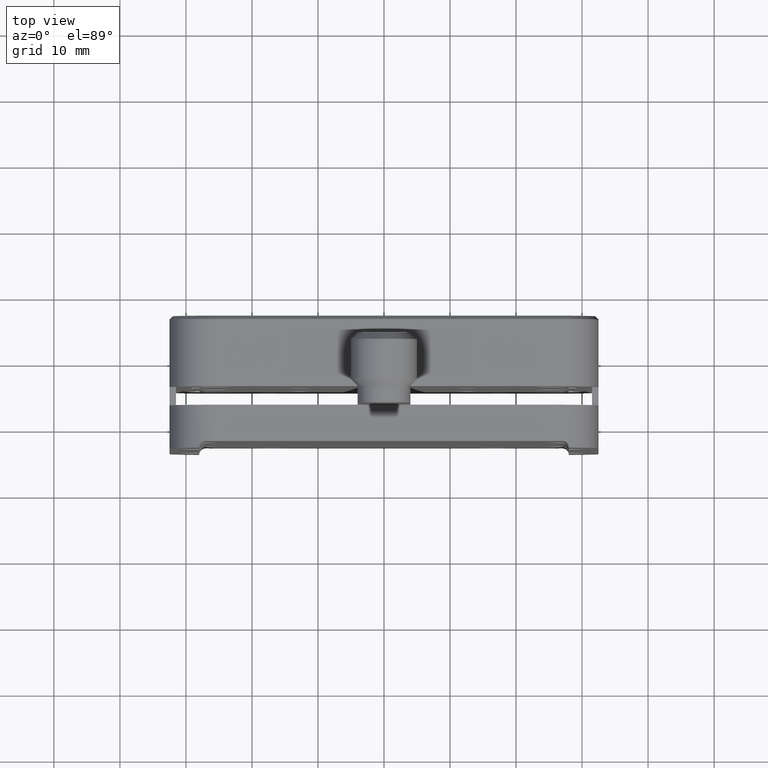
[diagram: clean part render]
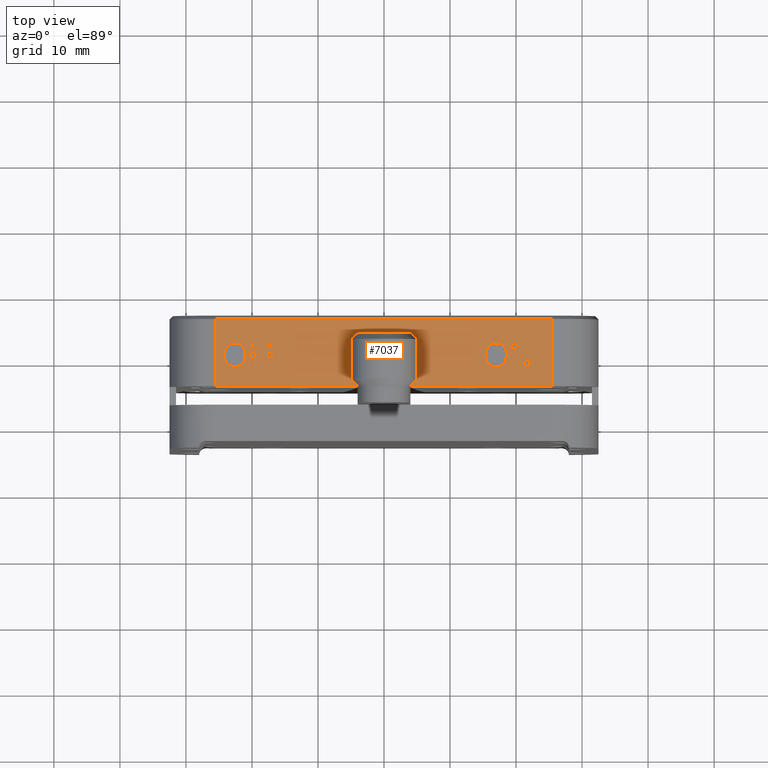
[diagram: same view with one face highlighted and labeled with its STEP entity id]
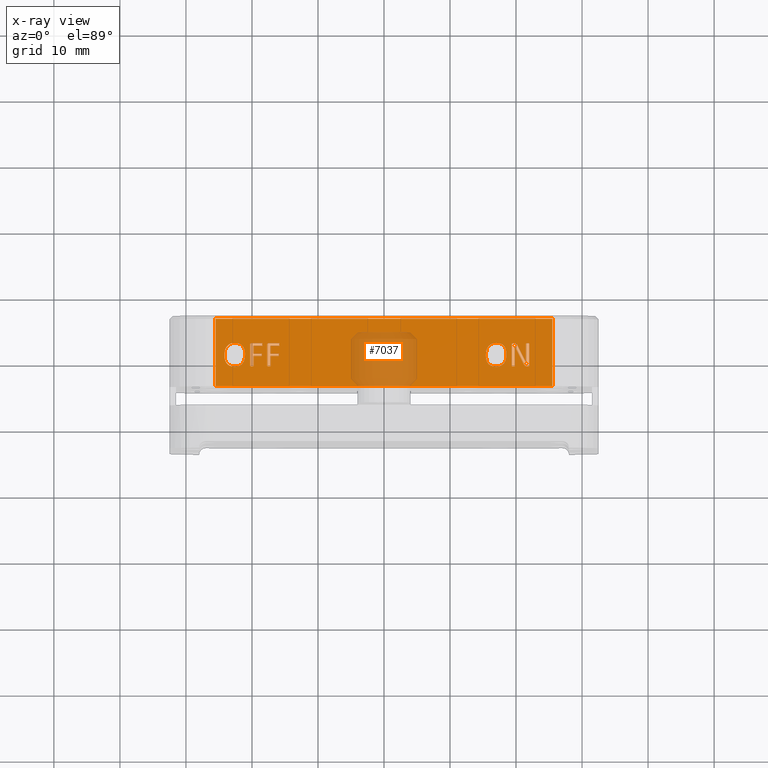
[diagram: x-ray of the same camera — body ghosted, the highlighted face saturated]
A machine part, top view. The second image highlights one B-rep face of the part: STEP entity #7037.
The next image is the same camera in x-ray: the body ghosted, the highlighted face saturated — about 16% of this face is hidden behind the body in this view.
In plain terms, the highlighted planar face has unit normal (-0, 0, -1).
Its self-contained STEP definition (entity closure, byte-faithful):
#19 = VERTEX_POINT ( 'NONE', #4724 ) ;
#31 = ORIENTED_EDGE ( 'NONE', *, *, #5882, .T. ) ;
#48 = CARTESIAN_POINT ( 'NONE',  ( -18.56445312500006400, 10.75588235294118000, 32.50000000000000000 ) ) ;
#66 = CARTESIAN_POINT ( 'NONE',  ( 19.84514796692238600, 10.98910845588235800, 32.49999999999999300 ) ) ;
#73 = ORIENTED_EDGE ( 'NONE', *, *, #7956, .T. ) ;
#75 = CARTESIAN_POINT ( 'NONE',  ( 15.41867737868709300, 10.53069852941176700, 32.49999999999999300 ) ) ;
#116 = EDGE_LOOP ( 'NONE', ( #4991, #4209, #5382, #7932, #73, #695, #6265, #264, #6096, #5299, #250, #4604, #4380, #4567, #2496, #1388, #989, #224, #1075, #1238, #8132, #5950 ) ) ;
#117 = VECTOR ( 'NONE', #594, 1000.000000000000000 ) ;
#132 = VERTEX_POINT ( 'NONE', #7264 ) ;
#153 = EDGE_CURVE ( 'NONE', #6809, #19, #4405, .T. ) ;
#172 = CARTESIAN_POINT ( 'NONE',  ( -17.68159885855960000, 8.866993695119861100, 32.50000000000000000 ) ) ;
#177 = ORIENTED_EDGE ( 'NONE', *, *, #5743, .T. ) ;
#183 = CARTESIAN_POINT ( 'NONE',  ( -24.08073456768339300, 9.767605573202145000, 32.50000000000000000 ) ) ;
#188 = CARTESIAN_POINT ( 'NONE',  ( -18.47708742564594800, 12.29904263614418600, 32.50000000000000000 ) ) ;
#192 = CARTESIAN_POINT ( 'NONE',  ( -17.42647058823535000, 8.800000000000002500, 32.50000000000000000 ) ) ;
#204 = VERTEX_POINT ( 'NONE', #5550 ) ;
#211 = FACE_BOUND ( 'NONE', #116, .T. ) ;
#223 = CARTESIAN_POINT ( 'NONE',  ( -22.63304227941182100, 8.748529411764709000, 32.50000000000000000 ) ) ;
#224 = ORIENTED_EDGE ( 'NONE', *, *, #4070, .T. ) ;
#234 = CARTESIAN_POINT ( 'NONE',  ( -19.77179600838153200, 8.832227494626970100, 32.50000000000000000 ) ) ;
#239 = CARTESIAN_POINT ( 'NONE',  ( -18.55817240592586300, 10.75551325960624800, 32.50000000000000000 ) ) ;
#241 = CARTESIAN_POINT ( 'NONE',  ( 19.33044208456944400, 12.10055147058824000, 32.49999999999999300 ) ) ;
#244 = VERTEX_POINT ( 'NONE', #4932 ) ;
#250 = ORIENTED_EDGE ( 'NONE', *, *, #3307, .T. ) ;
#254 = CARTESIAN_POINT ( 'NONE',  ( 20.07487539787399200, 11.29658135786703900, 32.49999999999999300 ) ) ;
#255 = CARTESIAN_POINT ( 'NONE',  ( -17.50930606617652400, 12.30000000000000200, 32.50000000000000000 ) ) ;
#260 = LINE ( 'NONE', #2800, #2750 ) ;
#264 = ORIENTED_EDGE ( 'NONE', *, *, #4462, .T. ) ;
#271 = CARTESIAN_POINT ( 'NONE',  ( 18.55558058952371100, 10.79296849647337600, 32.49999999999999300 ) ) ;
#272 = CARTESIAN_POINT ( 'NONE',  ( 15.46712777178560900, 9.940680674252211800, 32.49999999999999300 ) ) ;
#298 = B_SPLINE_CURVE_WITH_KNOTS ( 'NONE', 3,
 ( #5355, #4095, #7324, #5408, #6616, #4174, #2823, #3032, #5578, #4896, #6828 ),
 .UNSPECIFIED., .F., .F.,
 ( 4, 1, 1, 1, 1, 1, 1, 1, 4 ),
 ( 0.0000000000000000000, 0.2362224828584658900, 0.4264135999576101300, 0.5799213763692415700, 0.6984786828821241100, 0.7905833487290971900, 0.8683498488893369700, 0.9358932705104522400, 0.9999999999999998900 ),
 .UNSPECIFIED. ) ;
#302 = CARTESIAN_POINT ( 'NONE',  ( -17.68382352941182100, 12.11181066176470900, 32.50000000000000000 ) ) ;
#306 = LINE ( 'NONE', #3141, #117 ) ;
#307 = CARTESIAN_POINT ( 'NONE',  ( 19.84514796692238600, 11.78609834558823600, 32.49999999999999300 ) ) ;
#334 = VERTEX_POINT ( 'NONE', #5097 ) ;
#339 = LINE ( 'NONE', #3873, #8219 ) ;
#345 = CARTESIAN_POINT ( 'NONE',  ( 15.41959499221782100, 10.46068569274915400, 32.49999999999999300 ) ) ;
#348 = B_SPLINE_CURVE_WITH_KNOTS ( 'NONE', 3,
 ( #2737, #2058, #3979, #2079, #3925, #3309, #7161, #6487, #4586, #1384, #3385 ),
 .UNSPECIFIED., .F., .F.,
 ( 4, 1, 1, 1, 1, 1, 1, 1, 4 ),
 ( 0.0000000000000000000, 0.1454708864759476100, 0.2659173968555692500, 0.3722482837096763900, 0.4747811427953339000, 0.5823215193952715500, 0.7029111204227740400, 0.8409926561235264700, 1.000000000000000000 ),
 .UNSPECIFIED. ) ;
#351 = CARTESIAN_POINT ( 'NONE',  ( -20.25735294117653100, 8.886052389705884700, 32.50000000000000000 ) ) ;
#365 = CARTESIAN_POINT ( 'NONE',  ( 20.98795587133415500, 10.48807444852941600, 32.49999999999999300 ) ) ;
#370 = CARTESIAN_POINT ( 'NONE',  ( -21.07977449303295700, 11.17052868314102200, 32.50000000000000000 ) ) ;
#379 = CARTESIAN_POINT ( 'NONE',  ( -20.16488475924635500, 8.814151634793015300, 32.50000000000000000 ) ) ;
#399 = B_SPLINE_CURVE_WITH_KNOTS ( 'NONE', 3,
 ( #4287, #4952, #1703, #1137, #2913, #6122, #6753, #7384, #4259, #8040, #7981, #1789, #2408, #7326, #370, #525, #6895, #1877, #8159 ),
 .UNSPECIFIED., .F., .F.,
 ( 4, 1, 1, 1, 1, 1, 1, 1, 1, 1, 1, 1, 1, 1, 1, 1, 4 ),
 ( 0.0000000000000000000, 0.07026576159053703200, 0.1364609238589401500, 0.1988910119823642000, 0.2580690767965246900, 0.3152325765986259100, 0.3705891000740713100, 0.4254636981428015500, 0.4802364288076102500, 0.5357444852390945700, 0.5929032190994263400, 0.6522613140421849000, 0.7145836711308558600, 0.7802914091906340000, 0.8495994651625241600, 0.9225255947980658400, 1.000000000000000000 ),
 .UNSPECIFIED. ) ;
#406 = CARTESIAN_POINT ( 'NONE',  ( 21.98958724560612100, 8.907860915293179400, 32.49999999999999300 ) ) ;
#437 = CARTESIAN_POINT ( 'NONE',  ( 22.00691267280473800, 8.999448529411768800, 32.49999999999999300 ) ) ;
#438 = CARTESIAN_POINT ( 'NONE',  ( -24.14668625599498600, 10.92352919685462400, 32.50000000000000000 ) ) ;
#440 = ORIENTED_EDGE ( 'NONE', *, *, #2948, .T. ) ;
#444 = CARTESIAN_POINT ( 'NONE',  ( -21.93127501137358600, 8.873611202825429700, 32.50000000000000000 ) ) ;
#448 = CARTESIAN_POINT ( 'NONE',  ( -18.47552591928515800, 10.53471089107399500, 32.50000000000000000 ) ) ;
#453 = CARTESIAN_POINT ( 'NONE',  ( -24.16911764705888300, 10.53069852941176700, 32.50000000000000000 ) ) ;
#525 = CARTESIAN_POINT ( 'NONE',  ( -21.05017172945570500, 10.98781277663557500, 32.50000000000000000 ) ) ;
#555 = B_SPLINE_CURVE_WITH_KNOTS ( 'NONE', 3,
 ( #1440, #5874, #5907, #2098, #7522, #2579, #6968, #7590, #1983 ),
 .UNSPECIFIED., .F., .F.,
 ( 4, 1, 1, 1, 1, 1, 4 ),
 ( 0.0000000000000000000, 0.1667855106719272100, 0.3127623622804004400, 0.4393796381109113000, 0.5590309031635271000, 0.7861446902931102900, 1.000000000000000000 ),
 .UNSPECIFIED. ) ;
#560 = CARTESIAN_POINT ( 'NONE',  ( -21.02941176470593700, 10.59021139705882500, 32.50000000000000000 ) ) ;
#593 = CARTESIAN_POINT ( 'NONE',  ( 32.49999999999994300, 5.800000000000002500, 32.49999999999999300 ) ) ;
#594 = DIRECTION ( 'NONE',  ( 0.0000000000000000000, -1.000000000000000000, 0.0000000000000000000 ) ) ;
#645 = CARTESIAN_POINT ( 'NONE',  ( 18.55838326104003900, 10.59021139705882700, 32.49999999999999300 ) ) ;
#648 = CARTESIAN_POINT ( 'NONE',  ( 17.80141699098672300, 8.945334830787501800, 32.49999999999999300 ) ) ;
#671 = CARTESIAN_POINT ( 'NONE',  ( 18.53615294223107000, 10.18932600790466700, 32.49999999999999300 ) ) ;
#672 = VERTEX_POINT ( 'NONE', #6721 ) ;
#674 = B_SPLINE_CURVE_WITH_KNOTS ( 'NONE', 3,
 ( #6978, #8236, #5731, #3217, #3874, #4432, #5704, #7622, #2592, #7710, #3945 ),
 .UNSPECIFIED., .F., .F.,
 ( 4, 1, 1, 1, 1, 1, 1, 1, 4 ),
 ( 0.0000000000000000000, 0.07572256076908701100, 0.1516559504216483900, 0.2352713124129724400, 0.3339690624637663400, 0.4509959671890588800, 0.5976139039370594900, 0.7779090664098016200, 1.000000000000000000 ),
 .UNSPECIFIED. ) ;
#695 = ORIENTED_EDGE ( 'NONE', *, *, #7580, .T. ) ;
#699 = CARTESIAN_POINT ( 'NONE',  ( -18.49368106617653100, 11.88823529411765100, 32.50000000000000000 ) ) ;
#700 = LINE ( 'NONE', #7304, #2178 ) ;
#712 = VERTEX_POINT ( 'NONE', #365 ) ;
#726 = CARTESIAN_POINT ( 'NONE',  ( 17.65652001437239300, 8.873611202825429700, 32.49999999999999300 ) ) ;
#742 = CARTESIAN_POINT ( 'NONE',  ( -20.25735294117653100, 8.886052389705884700, 32.50000000000000000 ) ) ;
#762 = CARTESIAN_POINT ( 'NONE',  ( -18.47494251265819500, 11.89040486751371100, 32.50000000000000000 ) ) ;
#774 = VERTEX_POINT ( 'NONE', #5572 ) ;
#780 = B_SPLINE_CURVE_WITH_KNOTS ( 'NONE', 3,
 ( #3055, #3701, #2557, #5744, #7672, #3867, #1963, #7083, #3936, #6387, #2582 ),
 .UNSPECIFIED., .F., .F.,
 ( 4, 1, 1, 1, 1, 1, 1, 1, 4 ),
 ( 0.0000000000000000000, 0.2054820159220049100, 0.3822737874015003600, 0.5286826896541254600, 0.6515712833323520400, 0.7528406728546523900, 0.8450467464262928500, 0.9238950707747368700, 1.000000000000000000 ),
 .UNSPECIFIED. ) ;
#787 = CARTESIAN_POINT ( 'NONE',  ( 19.46482561988627300, 12.28972815263839300, 32.49999999999999300 ) ) ;
#798 = VECTOR ( 'NONE', #6309, 1000.000000000000000 ) ;
#801 = VERTEX_POINT ( 'NONE', #5034 ) ;
#811 = CARTESIAN_POINT ( 'NONE',  ( -17.36099899551146200, 8.800746502222192900, 32.50000000000000000 ) ) ;
#835 = CARTESIAN_POINT ( 'NONE',  ( 15.64161187032145700, 11.59518035067699200, 32.49999999999999300 ) ) ;
#836 = CARTESIAN_POINT ( 'NONE',  ( -15.88534055691679800, 12.28872841005573800, 32.50000000000000000 ) ) ;
#837 = CARTESIAN_POINT ( 'NONE',  ( -24.16820003352815100, 10.46068569274915400, 32.50000000000000000 ) ) ;
#854 = CARTESIAN_POINT ( 'NONE',  ( -19.75390331048107500, 8.848552756695554000, 32.50000000000000000 ) ) ;
#858 = CARTESIAN_POINT ( 'NONE',  ( 15.44110876975099200, 10.92352919685462200, 32.49999999999999300 ) ) ;
#859 = CARTESIAN_POINT ( 'NONE',  ( -15.85480552702393500, 12.25027657262427800, 32.50000000000000000 ) ) ;
#864 = CARTESIAN_POINT ( 'NONE',  ( 19.39575764148549600, 12.25522326902076000, 32.49999999999999300 ) ) ;
#879 = EDGE_CURVE ( 'NONE', #5174, #8094, #1003, .T. ) ;
#880 = VERTEX_POINT ( 'NONE', #3112 ) ;
#882 = CARTESIAN_POINT ( 'NONE',  ( -23.58412635839029300, 9.007838343765870400, 32.50000000000000000 ) ) ;
#884 = CARTESIAN_POINT ( 'NONE',  ( -17.26045881624754900, 8.814085392070952100, 32.50000000000000000 ) ) ;
#901 = VECTOR ( 'NONE', #3697, 1000.000000000000000 ) ;
#907 = CARTESIAN_POINT ( 'NONE',  ( -15.83120652979268600, 12.10780820578477600, 32.50000000000000000 ) ) ;
#914 = FACE_BOUND ( 'NONE', #7345, .T. ) ;
#927 = B_SPLINE_CURVE_WITH_KNOTS ( 'NONE', 3,
 ( #2206, #1583, #3549, #7903, #5451, #7933, #2932, #960, #3573, #7884, #4142 ),
 .UNSPECIFIED., .F., .F.,
 ( 4, 1, 1, 1, 1, 1, 1, 1, 4 ),
 ( 0.0000000000000000000, 0.06354195173517494800, 0.1317510206234230900, 0.2088324009892792700, 0.3050254118386404600, 0.4251877080477488600, 0.5773430870132646400, 0.7658586278839388800, 1.000000000000000000 ),
 .UNSPECIFIED. ) ;
#933 = CARTESIAN_POINT ( 'NONE',  ( -19.74264705882358900, 8.886856617647060500, 32.50000000000000000 ) ) ;
#948 = CARTESIAN_POINT ( 'NONE',  ( 15.43986548466125600, 10.12656312011302800, 32.49999999999999300 ) ) ;
#949 = CARTESIAN_POINT ( 'NONE',  ( 21.47817211651893700, 9.487966132619742900, 32.49999999999999300 ) ) ;
#954 = CARTESIAN_POINT ( 'NONE',  ( 19.99393926849934300, 11.45828522968557900, 32.49999999999999300 ) ) ;
#960 = CARTESIAN_POINT ( 'NONE',  ( 19.70746898206091700, 8.804829561439460100, 32.49999999999999300 ) ) ;
#967 = CARTESIAN_POINT ( 'NONE',  ( 18.50802053271302900, 11.17052868314102200, 32.49999999999999300 ) ) ;
#968 = CARTESIAN_POINT ( 'NONE',  ( 21.25430452753569500, 9.952271130638848700, 32.49999999999999300 ) ) ;
#970 = VECTOR ( 'NONE', #7382, 1000.000000000000000 ) ;
#979 = CARTESIAN_POINT ( 'NONE',  ( 19.84411517714555000, 11.58908338528584500, 32.49999999999999300 ) ) ;
#989 = ORIENTED_EDGE ( 'NONE', *, *, #7471, .T. ) ;
#993 = VERTEX_POINT ( 'NONE', #8083 ) ;
#1003 = LINE ( 'NONE', #4948, #901 ) ;
#1044 = CARTESIAN_POINT ( 'NONE',  ( 19.84512477698921600, 11.05585943765602300, 32.49999999999999300 ) ) ;
#1046 = CARTESIAN_POINT ( 'NONE',  ( 21.52224123030747900, 12.26672982820715600, 32.49999999999999300 ) ) ;
#1054 = VERTEX_POINT ( 'NONE', #2450 ) ;
#1056 = CARTESIAN_POINT ( 'NONE',  ( -23.10757804098799900, 12.28300016840807300, 32.50000000000000000 ) ) ;
#1075 = ORIENTED_EDGE ( 'NONE', *, *, #5148, .T. ) ;
#1077 = CARTESIAN_POINT ( 'NONE',  ( 21.49220679045179600, 10.32883731617647300, 32.49999999999999300 ) ) ;
#1096 = ORIENTED_EDGE ( 'NONE', *, *, #2256, .T. ) ;
#1110 = CARTESIAN_POINT ( 'NONE',  ( -22.56227022058829200, 12.35147058823529800, 32.50000000000000000 ) ) ;
#1124 = ORIENTED_EDGE ( 'NONE', *, *, #2130, .T. ) ;
#1137 = CARTESIAN_POINT ( 'NONE',  ( -22.20236243291073900, 12.32592107768596500, 32.50000000000000000 ) ) ;
#1155 = CARTESIAN_POINT ( 'NONE',  ( -15.85344429580632100, 11.93610294356870600, 32.50000000000000000 ) ) ;
#1176 = CARTESIAN_POINT ( 'NONE',  ( -15.84215485538228300, 11.96459158628228900, 32.50000000000000000 ) ) ;
#1179 = LINE ( 'NONE', #3774, #5356 ) ;
#1231 = CARTESIAN_POINT ( 'NONE',  ( -18.40474661881425800, 12.07426947254813100, 32.50000000000000000 ) ) ;
#1238 = ORIENTED_EDGE ( 'NONE', *, *, #4589, .T. ) ;
#1243 = ORIENTED_EDGE ( 'NONE', *, *, #3030, .T. ) ;
#1263 = CARTESIAN_POINT ( 'NONE',  ( -21.02941176470593700, 10.59021139705882500, 32.50000000000000000 ) ) ;
#1271 = LINE ( 'NONE', #4959, #2459 ) ;
#1276 = CARTESIAN_POINT ( 'NONE',  ( 17.32847150192499800, 8.777273458103492100, 32.49999999999999300 ) ) ;
#1337 = ORIENTED_EDGE ( 'NONE', *, *, #4476, .T. ) ;
#1344 = CARTESIAN_POINT ( 'NONE',  ( 18.46092932995966500, 9.826523383058818300, 32.49999999999999300 ) ) ;
#1360 = CARTESIAN_POINT ( 'NONE',  ( -19.74264705882358900, 11.88823529411765100, 32.50000000000000000 ) ) ;
#1369 = CARTESIAN_POINT ( 'NONE',  ( 17.49867593292618700, 8.817158389917427300, 32.49999999999999300 ) ) ;
#1384 = CARTESIAN_POINT ( 'NONE',  ( 20.19694189088821200, 12.04274313521064100, 32.49999999999999300 ) ) ;
#1388 = ORIENTED_EDGE ( 'NONE', *, *, #1903, .T. ) ;
#1389 = B_SPLINE_CURVE_WITH_KNOTS ( 'NONE', 3,
 ( #1765, #3003, #5434, #438, #2291, #6727, #2259, #6124, #7415, #4870, #8041, #7327, #5465, #7982, #1056, #5527, #4210, #3649, #1110 ),
 .UNSPECIFIED., .F., .F.,
 ( 4, 1, 1, 1, 1, 1, 1, 1, 1, 1, 1, 1, 1, 1, 1, 1, 4 ),
 ( 0.0000000000000000000, 0.07345351932000157600, 0.1434043684259346800, 0.2107936022879991800, 0.2757300458089050300, 0.3382885255915655800, 0.3979888394957087300, 0.4558480894082483400, 0.5124257040295806500, 0.5684727693349378400, 0.6243514860412804300, 0.6810841563438496700, 0.7391944427549919100, 0.7995543392936767000, 0.8627284686456474500, 0.9294366532504629900, 1.000000000000000000 ),
 .UNSPECIFIED. ) ;
#1391 = VECTOR ( 'NONE', #4433, 1000.000000000000000 ) ;
#1399 = CARTESIAN_POINT ( 'NONE',  ( -17.68382352941182100, 8.886052389705884700, 32.50000000000000000 ) ) ;
#1423 = VERTEX_POINT ( 'NONE', #8244 ) ;
#1440 = CARTESIAN_POINT ( 'NONE',  ( -17.68382352941182100, 12.11181066176470900, 32.50000000000000000 ) ) ;
#1447 = B_SPLINE_CURVE_WITH_KNOTS ( 'NONE', 3,
 ( #2723, #1456, #5921, #7203, #2085, #4705, #2792, #882, #3451, #3397, #5944, #3429, #7787, #183, #4083, #4061, #4650, #837, #1567 ),
 .UNSPECIFIED., .F., .F.,
 ( 4, 1, 1, 1, 1, 1, 1, 1, 1, 1, 1, 1, 1, 1, 1, 1, 4 ),
 ( 0.0000000000000000000, 0.07109031842491273000, 0.1378790705171073200, 0.2005254769301891300, 0.2598032200447118500, 0.3166786078106603200, 0.3716680261934053900, 0.4259776209961932400, 0.4800241023041461100, 0.5350653425086233600, 0.5917469411016135200, 0.6508146456421999300, 0.7130179021708154000, 0.7789048107866402000, 0.8483468014230252100, 0.9220672764071999900, 0.9999999999999998900 ),
 .UNSPECIFIED. ) ;
#1456 = CARTESIAN_POINT ( 'NONE',  ( -22.69692372417691600, 8.749723451497128900, 32.50000000000000000 ) ) ;
#1462 = CARTESIAN_POINT ( 'NONE',  ( -20.25595865102590700, 12.15821685013504800, 32.50000000000000000 ) ) ;
#1474 = CARTESIAN_POINT ( 'NONE',  ( -20.08283547794123400, 12.30000000000000200, 32.50000000000000000 ) ) ;
#1479 = CARTESIAN_POINT ( 'NONE',  ( 15.72266127285959500, 11.73373460810680800, 32.49999999999999300 ) ) ;
#1482 = CARTESIAN_POINT ( 'NONE',  ( -18.52822547239228300, 10.74550414859736900, 32.50000000000000000 ) ) ;
#1491 = VERTEX_POINT ( 'NONE', #4534 ) ;
#1494 = CARTESIAN_POINT ( 'NONE',  ( -19.74264705882358900, 10.75588235294117800, 32.50000000000000000 ) ) ;
#1502 = CARTESIAN_POINT ( 'NONE',  ( -19.97641113168229800, 8.800268958519041000, 32.50000000000000000 ) ) ;
#1522 = CARTESIAN_POINT ( 'NONE',  ( 18.18228382294098100, 11.89685998073745500, 32.49999999999999300 ) ) ;
#1538 = ORIENTED_EDGE ( 'NONE', *, *, #2139, .T. ) ;
#1540 = CARTESIAN_POINT ( 'NONE',  ( -18.48609663380148400, 10.68399250827536300, 32.50000000000000000 ) ) ;
#1547 = ORIENTED_EDGE ( 'NONE', *, *, #6395, .T. ) ;
#1552 = CARTESIAN_POINT ( 'NONE',  ( 18.35080497905968900, 11.64597473627316000, 32.49999999999999300 ) ) ;
#1565 = CARTESIAN_POINT ( 'NONE',  ( -18.47604879087033300, 10.60290999241633400, 32.50000000000000000 ) ) ;
#1567 = CARTESIAN_POINT ( 'NONE',  ( -24.16911764705888300, 10.53069852941176700, 32.50000000000000000 ) ) ;
#1583 = CARTESIAN_POINT ( 'NONE',  ( 19.84447996532788100, 8.879777790274198800, 32.49999999999999300 ) ) ;
#1600 = CARTESIAN_POINT ( 'NONE',  ( 19.84514796692238600, 11.78609834558823600, 32.49999999999999300 ) ) ;
#1617 = LINE ( 'NONE', #7374, #5677 ) ;
#1624 = CARTESIAN_POINT ( 'NONE',  ( 16.76697378046280600, 8.752039281445767900, 32.49999999999999300 ) ) ;
#1635 = VERTEX_POINT ( 'NONE', #3832 ) ;
#1644 = CARTESIAN_POINT ( 'NONE',  ( 21.18574575893299900, 9.122971898008581000, 32.49999999999999300 ) ) ;
#1647 = B_SPLINE_CURVE_WITH_KNOTS ( 'NONE', 3,
 ( #5340, #7844, #1624, #2188, #7228, #2138, #7914, #3459, #6047, #7209, #4097, #3480, #7946, #4178, #272, #948, #5384, #345, #2849 ),
 .UNSPECIFIED., .F., .F.,
 ( 4, 1, 1, 1, 1, 1, 1, 1, 1, 1, 1, 1, 1, 1, 1, 1, 4 ),
 ( 0.0000000000000000000, 0.07109031842491273000, 0.1378790705171073200, 0.2005254769301891300, 0.2598032200447118500, 0.3166786078106603200, 0.3716680261934053900, 0.4259776209961932400, 0.4800241023041461100, 0.5350653425086233600, 0.5917469411016135200, 0.6508146456421997100, 0.7130179021708156200, 0.7789048107866402000, 0.8483468014230252100, 0.9220672764071999900, 0.9999999999999998900 ),
 .UNSPECIFIED. ) ;
#1666 = CARTESIAN_POINT ( 'NONE',  ( 21.26938946515068800, 8.982738914029269500, 32.49999999999999300 ) ) ;
#1670 = CARTESIAN_POINT ( 'NONE',  ( 21.16890715809885700, 9.155468750000002500, 32.49999999999999300 ) ) ;
#1676 = CARTESIAN_POINT ( 'NONE',  ( 21.80187478576349100, 8.800423936139514700, 32.49999999999999300 ) ) ;
#1691 = CARTESIAN_POINT ( 'NONE',  ( 21.55455594136651600, 8.802288411258922800, 32.49999999999999300 ) ) ;
#1698 = VERTEX_POINT ( 'NONE', #5756 ) ;
#1703 = CARTESIAN_POINT ( 'NONE',  ( -22.37832244505628100, 12.34756229340601100, 32.50000000000000000 ) ) ;
#1704 = CARTESIAN_POINT ( 'NONE',  ( -17.68382352941182100, 8.886052389705884700, 32.50000000000000000 ) ) ;
#1712 = ORIENTED_EDGE ( 'NONE', *, *, #7097, .T. ) ;
#1714 = CARTESIAN_POINT ( 'NONE',  ( -20.00000000000006000, 8.800000000000002500, 32.50000000000000000 ) ) ;
#1729 = CARTESIAN_POINT ( 'NONE',  ( 21.43001157655738000, 8.835708072798123400, 32.49999999999999300 ) ) ;
#1748 = CARTESIAN_POINT ( 'NONE',  ( -18.54531020852173400, 10.34598117690593900, 32.50000000000000000 ) ) ;
#1764 = CARTESIAN_POINT ( 'NONE',  ( 21.96669126672885900, 8.872734129605026600, 32.49999999999999300 ) ) ;
#1765 = CARTESIAN_POINT ( 'NONE',  ( -24.16911764705888300, 10.53069852941176700, 32.50000000000000000 ) ) ;
#1774 = CARTESIAN_POINT ( 'NONE',  ( -18.47616234597969500, 10.50327506897457900, 32.50000000000000000 ) ) ;
#1778 = CARTESIAN_POINT ( 'NONE',  ( 16.96057078416471200, 12.35001898143650600, 32.49999999999999300 ) ) ;
#1789 = CARTESIAN_POINT ( 'NONE',  ( -21.23699004668627300, 11.64597473627316000, 32.50000000000000000 ) ) ;
#1842 = CARTESIAN_POINT ( 'NONE',  ( 22.00488504688549400, 12.23251597009174700, 32.49999999999999300 ) ) ;
#1845 = CARTESIAN_POINT ( 'NONE',  ( -15.91389780584966500, 11.88895937260376100, 32.50000000000000000 ) ) ;
#1847 = VERTEX_POINT ( 'NONE', #5184 ) ;
#1851 = ORIENTED_EDGE ( 'NONE', *, *, #3355, .T. ) ;
#1877 = CARTESIAN_POINT ( 'NONE',  ( -21.03036463520879500, 10.65914607532970100, 32.50000000000000000 ) ) ;
#1892 = DIRECTION ( 'NONE',  ( 1.000000000000000000, -0.0000000000000000000, -1.067522139062650400E-016 ) ) ;
#1903 = EDGE_CURVE ( 'NONE', #712, #880, #4611, .T. ) ;
#1963 = CARTESIAN_POINT ( 'NONE',  ( -15.93837893319030200, 10.37314432829288800, 32.50000000000000000 ) ) ;
#1971 = DIRECTION ( 'NONE',  ( 0.0000000000000000000, 1.000000000000000000, 0.0000000000000000000 ) ) ;
#1983 = CARTESIAN_POINT ( 'NONE',  ( -17.50930606617652400, 12.30000000000000200, 32.50000000000000000 ) ) ;
#1994 = CARTESIAN_POINT ( 'NONE',  ( 21.16890715809885700, 9.155468750000002500, 32.49999999999999300 ) ) ;
#2012 = B_SPLINE_CURVE_WITH_KNOTS ( 'NONE', 3,
 ( #6713, #7273, #979, #7900, #5448, #1044, #4138 ),
 .UNSPECIFIED., .F., .F.,
 ( 4, 1, 1, 1, 4 ),
 ( 0.0000000000000000000, 0.2452440474129362600, 0.4964984275176029800, 0.7487537243524717800, 1.000000000000000000 ),
 .UNSPECIFIED. ) ;
#2016 = CARTESIAN_POINT ( 'NONE',  ( 17.01970675473689800, 8.749972960753007500, 32.49999999999999300 ) ) ;
#2025 = FACE_BOUND ( 'NONE', #6977, .T. ) ;
#2030 = VERTEX_POINT ( 'NONE', #2972 ) ;
#2033 = CARTESIAN_POINT ( 'NONE',  ( -20.25686801066612500, 12.12795061412866100, 32.50000000000000000 ) ) ;
#2051 = CARTESIAN_POINT ( 'NONE',  ( -18.49689797794123800, 12.30000000000000200, 32.50000000000000000 ) ) ;
#2054 = CARTESIAN_POINT ( 'NONE',  ( -17.68309499117556900, 8.879811022482909900, 32.50000000000000000 ) ) ;
#2055 = CARTESIAN_POINT ( 'NONE',  ( -18.42697370757103700, 11.93610294356870600, 32.50000000000000000 ) ) ;
#2058 = CARTESIAN_POINT ( 'NONE',  ( 19.81222629466879000, 12.29961608199905000, 32.49999999999999300 ) ) ;
#2068 = CARTESIAN_POINT ( 'NONE',  ( -17.42647058823535000, 8.800000000000002500, 32.50000000000000000 ) ) ;
#2070 = CARTESIAN_POINT ( 'NONE',  ( -20.22775573004600200, 12.23376663625268900, 32.50000000000000000 ) ) ;
#2071 = VERTEX_POINT ( 'NONE', #3152 ) ;
#2072 = CARTESIAN_POINT ( 'NONE',  ( -18.45886996868150500, 12.28872841005573400, 32.50000000000000000 ) ) ;
#2079 = CARTESIAN_POINT ( 'NONE',  ( 19.92815398037490800, 12.28827179813693600, 32.49999999999999300 ) ) ;
#2085 = CARTESIAN_POINT ( 'NONE',  ( -23.16577030607545500, 8.810515144274965800, 32.50000000000000000 ) ) ;
#2097 = VERTEX_POINT ( 'NONE', #7644 ) ;
#2098 = CARTESIAN_POINT ( 'NONE',  ( -17.67244664772849900, 12.19991497715092200, 32.50000000000000000 ) ) ;
#2109 = CARTESIAN_POINT ( 'NONE',  ( -18.49801638872561700, 10.71135436303309200, 32.50000000000000000 ) ) ;
#2118 = CARTESIAN_POINT ( 'NONE',  ( -18.44067039077275500, 11.91416158248082600, 32.50000000000000000 ) ) ;
#2125 = ORIENTED_EDGE ( 'NONE', *, *, #3008, .T. ) ;
#2130 = EDGE_CURVE ( 'NONE', #5601, #774, #7364, .T. ) ;
#2134 = CARTESIAN_POINT ( 'NONE',  ( 16.95475274633415100, 8.748529411764709000, 32.50000000000000000 ) ) ;
#2138 = CARTESIAN_POINT ( 'NONE',  ( 16.26958014866441700, 8.862299047465771900, 32.49999999999999300 ) ) ;
#2139 = EDGE_CURVE ( 'NONE', #8094, #2708, #7270, .T. ) ;
#2141 = B_SPLINE_CURVE_WITH_KNOTS ( 'NONE', 3,
 ( #1263, #5738, #2887, #5439, #6086, #2263, #5531, #4934, #4980, #6790, #7420, #4377, #6759, #444, #6217, #5552, #6192, #6807, #3039 ),
 .UNSPECIFIED., .F., .F.,
 ( 4, 1, 1, 1, 1, 1, 1, 1, 1, 1, 1, 1, 1, 1, 1, 1, 4 ),
 ( 0.0000000000000000000, 0.07446102563315551400, 0.1457228604095537900, 0.2135651578151750700, 0.2789551149234713600, 0.3414129264183052800, 0.4012820417274454700, 0.4590444461442615400, 0.5155741310407142600, 0.5712962021700083200, 0.6270250455033747900, 0.6831744106431206800, 0.7413246128063161200, 0.8013231598751918700, 0.8638373400361777400, 0.9298590865115861100, 0.9999999999999998900 ),
 .UNSPECIFIED. ) ;
#2147 = CARTESIAN_POINT ( 'NONE',  ( -19.93452840727617200, 8.800746502222192900, 32.50000000000000000 ) ) ;
#2150 = CARTESIAN_POINT ( 'NONE',  ( 15.42233626450324000, 10.73027158485056600, 32.49999999999999300 ) ) ;
#2160 = CARTESIAN_POINT ( 'NONE',  ( 17.69960578258497100, 12.23808250143490800, 32.49999999999999300 ) ) ;
#2169 = EDGE_CURVE ( 'NONE', #6313, #4461, #3370, .T. ) ;
#2177 = CARTESIAN_POINT ( 'NONE',  ( -18.56445312500006000, 10.34411764705882700, 32.50000000000000000 ) ) ;
#2178 = VECTOR ( 'NONE', #8080, 1000.000000000000000 ) ;
#2180 = ORIENTED_EDGE ( 'NONE', *, *, #3711, .T. ) ;
#2182 = EDGE_CURVE ( 'NONE', #993, #6809, #7734, .T. ) ;
#2188 = CARTESIAN_POINT ( 'NONE',  ( 16.58808497647543900, 8.775408023249374500, 32.49999999999999300 ) ) ;
#2205 = CARTESIAN_POINT ( 'NONE',  ( 21.50402155449214100, 12.25117044955443500, 32.49999999999999300 ) ) ;
#2206 = CARTESIAN_POINT ( 'NONE',  ( 19.84514796692238600, 8.886052389705884700, 32.49999999999999300 ) ) ;
#2223 = CARTESIAN_POINT ( 'NONE',  ( 17.02552480515768400, 12.35147058823529800, 32.49999999999999300 ) ) ;
#2230 = B_SPLINE_CURVE_WITH_KNOTS ( 'NONE', 3,
 ( #4840, #2938, #4319, #7444, #6183, #6148, #1077 ),
 .UNSPECIFIED., .F., .F.,
 ( 4, 1, 1, 1, 4 ),
 ( 0.0000000000000000000, 0.2450184418201623600, 0.5000268157415314100, 0.7550221801931292800, 1.000000000000000000 ),
 .UNSPECIFIED. ) ;
#2233 = CARTESIAN_POINT ( 'NONE',  ( 17.38543259283522600, 12.32592107768596900, 32.49999999999999300 ) ) ;
#2235 = DIRECTION ( 'NONE',  ( 1.000000000000000000, 0.0000000000000000000, -1.067522139062650300E-016 ) ) ;
#2247 = CARTESIAN_POINT ( 'NONE',  ( 21.48896462711577400, 8.812761513554091800, 32.49999999999999300 ) ) ;
#2256 = EDGE_CURVE ( 'NONE', #7568, #6221, #2285, .T. ) ;
#2259 = CARTESIAN_POINT ( 'NONE',  ( -24.01612205727206700, 11.44460046178305900, 32.50000000000000000 ) ) ;
#2263 = CARTESIAN_POINT ( 'NONE',  ( -21.12686569578630400, 9.826523383058818300, 32.50000000000000000 ) ) ;
#2274 = CARTESIAN_POINT ( 'NONE',  ( 21.50024906986356800, 9.445795036764709000, 32.49999999999999300 ) ) ;
#2285 = LINE ( 'NONE', #2177, #6951 ) ;
#2291 = CARTESIAN_POINT ( 'NONE',  ( -24.11577555173710200, 11.10725650309312600, 32.50000000000000000 ) ) ;
#2296 = ORIENTED_EDGE ( 'NONE', *, *, #8120, .T. ) ;
#2310 = CARTESIAN_POINT ( 'NONE',  ( 22.00691267280473800, 8.999448529411768800, 32.49999999999999300 ) ) ;
#2314 = ORIENTED_EDGE ( 'NONE', *, *, #879, .T. ) ;
#2321 = CARTESIAN_POINT ( 'NONE',  ( 21.86676964957968700, 8.809643736743224100, 32.49999999999999300 ) ) ;
#2362 = ORIENTED_EDGE ( 'NONE', *, *, #5385, .T. ) ;
#2408 = CARTESIAN_POINT ( 'NONE',  ( -21.17350952681268300, 11.49973078943545500, 32.50000000000000000 ) ) ;
#2413 = ORIENTED_EDGE ( 'NONE', *, *, #6107, .T. ) ;
#2419 = DIRECTION ( 'NONE',  ( -0.0000000000000000000, 1.000000000000000000, -0.0000000000000000000 ) ) ;
#2436 = LINE ( 'NONE', #4982, #5603 ) ;
#2449 = CARTESIAN_POINT ( 'NONE',  ( -18.55814791526414400, 10.34473144833349100, 32.50000000000000000 ) ) ;
#2450 = CARTESIAN_POINT ( 'NONE',  ( -17.16911764705887900, 11.88823529411765100, 32.50000000000000000 ) ) ;
#2454 = CARTESIAN_POINT ( 'NONE',  ( 21.77585054292552500, 12.29971130608133800, 32.49999999999999300 ) ) ;
#2459 = VECTOR ( 'NONE', #2419, 1000.000000000000000 ) ;
#2484 = VERTEX_POINT ( 'NONE', #5397 ) ;
#2496 = ORIENTED_EDGE ( 'NONE', *, *, #7869, .T. ) ;
#2498 = CARTESIAN_POINT ( 'NONE',  ( -18.56445312500006400, 10.34411764705882700, 32.50000000000000000 ) ) ;
#2501 = EDGE_CURVE ( 'NONE', #4216, #2030, #2012, .T. ) ;
#2527 = ORIENTED_EDGE ( 'NONE', *, *, #6031, .T. ) ;
#2538 = CARTESIAN_POINT ( 'NONE',  ( 18.55712276218409000, 10.52127559315951200, 32.49999999999999300 ) ) ;
#2542 = DIRECTION ( 'NONE',  ( 0.0000000000000000000, 1.000000000000000000, 0.0000000000000000000 ) ) ;
#2557 = CARTESIAN_POINT ( 'NONE',  ( -15.90263293421497600, 10.50327506897457900, 32.50000000000000000 ) ) ;
#2563 = DIRECTION ( 'NONE',  ( -0.4552893158667238900, 0.8903435510282592400, 4.860314243664157500E-017 ) ) ;
#2579 = CARTESIAN_POINT ( 'NONE',  ( -17.62173604322520900, 12.26648548688294900, 32.50000000000000000 ) ) ;
#2582 = CARTESIAN_POINT ( 'NONE',  ( -15.99092371323535000, 10.34411764705882700, 32.50000000000000000 ) ) ;
#2592 = CARTESIAN_POINT ( 'NONE',  ( -15.90251937910562100, 10.60290999241633600, 32.50000000000000000 ) ) ;
#2616 = CARTESIAN_POINT ( 'NONE',  ( 21.78896690074591500, 8.800000000000002500, 32.49999999999999300 ) ) ;
#2631 = ORIENTED_EDGE ( 'NONE', *, *, #4740, .T. ) ;
#2638 = CARTESIAN_POINT ( 'NONE',  ( -17.42647058823535000, 8.800000000000002500, 32.50000000000000000 ) ) ;
#2652 = CARTESIAN_POINT ( 'NONE',  ( -18.47518382352947300, 10.55160845588235800, 32.50000000000000000 ) ) ;
#2672 = CARTESIAN_POINT ( 'NONE',  ( -17.65405261854254300, 8.832736276071075900, 32.50000000000000000 ) ) ;
#2673 = CARTESIAN_POINT ( 'NONE',  ( -18.48742721761437500, 11.88895937260375900, 32.50000000000000000 ) ) ;
#2675 = EDGE_CURVE ( 'NONE', #19, #1698, #348, .T. ) ;
#2699 = CARTESIAN_POINT ( 'NONE',  ( -17.48978871211429000, 8.800895207265956100, 32.50000000000000000 ) ) ;
#2708 = VERTEX_POINT ( 'NONE', #2638 ) ;
#2713 = ORIENTED_EDGE ( 'NONE', *, *, #7531, .T. ) ;
#2722 = CARTESIAN_POINT ( 'NONE',  ( -15.90355801388123800, 12.29904263614418400, 32.50000000000000000 ) ) ;
#2723 = CARTESIAN_POINT ( 'NONE',  ( -22.63304227941182100, 8.748529411764709000, 32.50000000000000000 ) ) ;
#2737 = CARTESIAN_POINT ( 'NONE',  ( 19.78563509927533200, 12.30000000000000400, 32.49999999999999300 ) ) ;
#2746 = CARTESIAN_POINT ( 'NONE',  ( 16.04473279311619600, 12.07063143685865500, 32.49999999999999300 ) ) ;
#2747 = CARTESIAN_POINT ( 'NONE',  ( -18.47549144317780500, 10.56985349229269700, 32.50000000000000000 ) ) ;
#2750 = VECTOR ( 'NONE', #4716, 1000.000000000000000 ) ;
#2784 = VECTOR ( 'NONE', #2563, 1000.000000000000200 ) ;
#2792 = CARTESIAN_POINT ( 'NONE',  ( -23.45726085398403900, 8.928564831356268900, 32.50000000000000000 ) ) ;
#2800 = CARTESIAN_POINT ( 'NONE',  ( -17.16911764705887900, 10.75588235294118000, 32.50000000000000000 ) ) ;
#2802 = CARTESIAN_POINT ( 'NONE',  ( 17.20947258068969500, 12.34756229340600700, 32.49999999999999300 ) ) ;
#2805 = LINE ( 'NONE', #66, #7459 ) ;
#2810 = CARTESIAN_POINT ( 'NONE',  ( -19.87790515380263700, 8.804806801297161200, 32.50000000000000000 ) ) ;
#2823 = CARTESIAN_POINT ( 'NONE',  ( 19.36006046821602000, 8.832959859646761600, 32.49999999999999300 ) ) ;
#2827 = CARTESIAN_POINT ( 'NONE',  ( 18.08039362024794600, 12.00331151307090300, 32.49999999999999300 ) ) ;
#2843 = CARTESIAN_POINT ( 'NONE',  ( 19.84514796692238600, 8.886052389705884700, 32.49999999999999300 ) ) ;
#2844 = B_SPLINE_CURVE_WITH_KNOTS ( 'NONE', 3,
 ( #2848, #7208, #2802, #2233, #6619, #2160, #5339, #6675, #2827, #1522, #7892, #1552, #4150, #2877, #967, #5412, #271, #7945, #4177 ),
 .UNSPECIFIED., .F., .F.,
 ( 4, 1, 1, 1, 1, 1, 1, 1, 1, 1, 1, 1, 1, 1, 1, 1, 4 ),
 ( 0.0000000000000000000, 0.07026576159053703200, 0.1364609238589401000, 0.1988910119823641100, 0.2580690767965247400, 0.3152325765986259700, 0.3705891000740713100, 0.4254636981428013800, 0.4802364288076103000, 0.5357444852390944600, 0.5929032190994265600, 0.6522613140421850100, 0.7145836711308564100, 0.7802914091906340000, 0.8495994651625239400, 0.9225255947980661700, 1.000000000000000000 ),
 .UNSPECIFIED. ) ;
#2845 = CARTESIAN_POINT ( 'NONE',  ( -20.08283547794123400, 12.30000000000000200, 32.50000000000000000 ) ) ;
#2848 = CARTESIAN_POINT ( 'NONE',  ( 17.02552480515768400, 12.35147058823529800, 32.49999999999999300 ) ) ;
#2849 = CARTESIAN_POINT ( 'NONE',  ( 15.41867737868709300, 10.53069852941176700, 32.49999999999999300 ) ) ;
#2851 = CARTESIAN_POINT ( 'NONE',  ( 21.19222477740780900, 10.08326551167156300, 32.49999999999999300 ) ) ;
#2857 = EDGE_CURVE ( 'NONE', #1635, #3101, #1271, .T. ) ;
#2877 = CARTESIAN_POINT ( 'NONE',  ( 18.46770385069312300, 11.34162211621852400, 32.49999999999999300 ) ) ;
#2887 = CARTESIAN_POINT ( 'NONE',  ( -21.03313910439936400, 10.38636578707744800, 32.50000000000000000 ) ) ;
#2888 = CARTESIAN_POINT ( 'NONE',  ( -20.25662440294027900, 8.879811022482909900, 32.50000000000000000 ) ) ;
#2899 = B_SPLINE_CURVE_WITH_KNOTS ( 'NONE', 3,
 ( #3876, #1231, #5837, #5866, #7738, #2055, #2118, #4029, #762, #2673, #7095 ),
 .UNSPECIFIED., .F., .F.,
 ( 4, 1, 1, 1, 1, 1, 1, 1, 4 ),
 ( 0.0000000000000000000, 0.2050984483181059700, 0.3811114567396271000, 0.5296016567166761400, 0.6542371916426372700, 0.7569461913711699200, 0.8459101554599762800, 0.9228131897307776400, 0.9999999999999998900 ),
 .UNSPECIFIED. ) ;
#2913 = CARTESIAN_POINT ( 'NONE',  ( -22.03914443879642700, 12.28898620787648900, 32.50000000000000000 ) ) ;
#2930 = CARTESIAN_POINT ( 'NONE',  ( 21.54915127167119600, 12.27923675271318200, 32.49999999999999300 ) ) ;
#2932 = CARTESIAN_POINT ( 'NONE',  ( 19.75193807132822200, 8.814019770963053400, 32.49999999999999300 ) ) ;
#2938 = CARTESIAN_POINT ( 'NONE',  ( 21.49879580195480200, 9.517905548021051500, 32.49999999999999300 ) ) ;
#2948 = EDGE_CURVE ( 'NONE', #2708, #3035, #7986, .T. ) ;
#2949 = VERTEX_POINT ( 'NONE', #1494 ) ;
#2972 = CARTESIAN_POINT ( 'NONE',  ( 19.84514796692238600, 10.98910845588235800, 32.49999999999999300 ) ) ;
#2991 = DIRECTION ( 'NONE',  ( 1.000000000000000000, 0.0000000000000000000, -1.067522139062650300E-016 ) ) ;
#3003 = CARTESIAN_POINT ( 'NONE',  ( -24.16787831911568700, 10.59829737691414500, 32.50000000000000000 ) ) ;
#3004 = LINE ( 'NONE', #6591, #4995 ) ;
#3008 = EDGE_CURVE ( 'NONE', #7955, #5601, #2844, .T. ) ;
#3013 = CARTESIAN_POINT ( 'NONE',  ( -18.49765297639109100, 10.39513375307725000, 32.50000000000000000 ) ) ;
#3022 = CARTESIAN_POINT ( 'NONE',  ( -15.83121720704954600, 12.07426947254813100, 32.50000000000000000 ) ) ;
#3030 = EDGE_CURVE ( 'NONE', #4305, #132, #1389, .T. ) ;
#3031 = CARTESIAN_POINT ( 'NONE',  ( -18.40441176470594400, 12.09090073529411800, 32.50000000000000000 ) ) ;
#3032 = CARTESIAN_POINT ( 'NONE',  ( 19.34195772921718900, 8.848113127892117900, 32.49999999999999300 ) ) ;
#3035 = VERTEX_POINT ( 'NONE', #1704 ) ;
#3039 = CARTESIAN_POINT ( 'NONE',  ( -22.63304227941182100, 8.748529411764709000, 32.50000000000000000 ) ) ;
#3050 = CARTESIAN_POINT ( 'NONE',  ( -20.08283547794123400, 12.30000000000000200, 32.50000000000000000 ) ) ;
#3055 = CARTESIAN_POINT ( 'NONE',  ( -15.90165441176476500, 10.55160845588235800, 32.50000000000000000 ) ) ;
#3072 = PLANE ( 'NONE',  #4565 ) ;
#3101 = VERTEX_POINT ( 'NONE', #7359 ) ;
#3109 = VECTOR ( 'NONE', #2235, 1000.000000000000000 ) ;
#3112 = CARTESIAN_POINT ( 'NONE',  ( 21.49783638604003100, 9.445795036764709000, 32.49999999999999300 ) ) ;
#3126 = B_SPLINE_CURVE_WITH_KNOTS ( 'NONE', 3,
 ( #6170, #3022, #3756, #7429, #1176, #1155, #8111, #6204, #7488, #1845, #3690 ),
 .UNSPECIFIED., .F., .F.,
 ( 4, 1, 1, 1, 1, 1, 1, 1, 4 ),
 ( 0.0000000000000000000, 0.2050984483181089400, 0.3811114567396295400, 0.5296016567166781400, 0.6542371916426389400, 0.7569461913711682500, 0.8459101554599767200, 0.9228131897307778600, 1.000000000000000000 ),
 .UNSPECIFIED. ) ;
#3141 = CARTESIAN_POINT ( 'NONE',  ( 22.00691267280473800, 12.21394761029412000, 32.49999999999999300 ) ) ;
#3152 = CARTESIAN_POINT ( 'NONE',  ( -15.90165441176476500, 10.55160845588235800, 32.50000000000000000 ) ) ;
#3182 = CARTESIAN_POINT ( 'NONE',  ( 19.33044208456944400, 8.886052389705884700, 32.49999999999999300 ) ) ;
#3186 = CARTESIAN_POINT ( 'NONE',  ( 21.49220679045179600, 10.32883731617647300, 32.49999999999999300 ) ) ;
#3196 = ORIENTED_EDGE ( 'NONE', *, *, #4841, .T. ) ;
#3209 = ORIENTED_EDGE ( 'NONE', *, *, #6434, .T. ) ;
#3210 = CARTESIAN_POINT ( 'NONE',  ( 19.84514796692238600, 11.78609834558823600, 32.49999999999999300 ) ) ;
#3217 = CARTESIAN_POINT ( 'NONE',  ( -15.95469606062756400, 10.74550414859736800, 32.50000000000000000 ) ) ;
#3224 = CARTESIAN_POINT ( 'NONE',  ( 21.97714953847315700, 12.26609471620823500, 32.49999999999999300 ) ) ;
#3280 = B_SPLINE_CURVE_WITH_KNOTS ( 'NONE', 3,
 ( #1714, #4183, #6054, #7285, #379, #8049, #4263, #5392, #3513, #2888, #351 ),
 .UNSPECIFIED., .F., .F.,
 ( 4, 1, 1, 1, 1, 1, 1, 1, 4 ),
 ( 0.0000000000000000000, 0.2268488431132037700, 0.4188129377921366300, 0.5742435959558102000, 0.6975317404332447300, 0.7916285230261404000, 0.8690068995742165100, 0.9362132197863257700, 1.000000000000000000 ),
 .UNSPECIFIED. ) ;
#3307 = EDGE_CURVE ( 'NONE', #8260, #993, #2436, .T. ) ;
#3309 = CARTESIAN_POINT ( 'NONE',  ( 20.03659125139543600, 12.24202793385926600, 32.49999999999999300 ) ) ;
#3319 = VECTOR ( 'NONE', #3859, 1000.000000000000000 ) ;
#3332 = VERTEX_POINT ( 'NONE', #4065 ) ;
#3337 = LINE ( 'NONE', #6971, #6681 ) ;
#3349 = CARTESIAN_POINT ( 'NONE',  ( -17.40288171991758800, 8.800268958519041000, 32.50000000000000000 ) ) ;
#3352 = CARTESIAN_POINT ( 'NONE',  ( -20.24597605949320600, 12.19991497715091600, 32.50000000000000000 ) ) ;
#3355 = EDGE_CURVE ( 'NONE', #2097, #1423, #260, .T. ) ;
#3367 = CARTESIAN_POINT ( 'NONE',  ( -15.86731164374256400, 12.27431536583463300, 32.50000000000000000 ) ) ;
#3370 = LINE ( 'NONE', #7730, #8014 ) ;
#3372 = CARTESIAN_POINT ( 'NONE',  ( 19.34542119129121200, 12.19215480347632800, 32.49999999999999300 ) ) ;
#3385 = CARTESIAN_POINT ( 'NONE',  ( 20.21026745221650600, 12.01691176470588500, 32.49999999999999300 ) ) ;
#3396 = CARTESIAN_POINT ( 'NONE',  ( -18.47518382352947300, 10.55160845588235800, 32.50000000000000000 ) ) ;
#3397 = CARTESIAN_POINT ( 'NONE',  ( -23.79960759893358700, 9.207306242841003300, 32.50000000000000000 ) ) ;
#3398 = VERTEX_POINT ( 'NONE', #223 ) ;
#3408 = ORIENTED_EDGE ( 'NONE', *, *, #2857, .T. ) ;
#3425 = CARTESIAN_POINT ( 'NONE',  ( 16.65102009799363000, 12.32269430051712400, 32.49999999999999300 ) ) ;
#3429 = CARTESIAN_POINT ( 'NONE',  ( -23.96399881007883800, 9.461095299598243400, 32.50000000000000000 ) ) ;
#3433 = CARTESIAN_POINT ( 'NONE',  ( -17.18037389871636100, 8.848552756695555700, 32.50000000000000000 ) ) ;
#3438 = CARTESIAN_POINT ( 'NONE',  ( -18.40931913785100000, 12.18354830333842600, 32.50000000000000000 ) ) ;
#3451 = CARTESIAN_POINT ( 'NONE',  ( -23.69814608472068700, 9.100789051684950300, 32.50000000000000000 ) ) ;
#3459 = CARTESIAN_POINT ( 'NONE',  ( 16.00366866735567200, 9.007838343765870400, 32.49999999999999300 ) ) ;
#3460 = CARTESIAN_POINT ( 'NONE',  ( 21.31693160495712300, 9.824598937923680000, 32.49999999999999300 ) ) ;
#3480 = CARTESIAN_POINT ( 'NONE',  ( 15.62379621566712600, 9.461095299598241600, 32.49999999999999300 ) ) ;
#3491 = CARTESIAN_POINT ( 'NONE',  ( 21.75438509927532800, 12.30000000000000200, 32.49999999999999300 ) ) ;
#3494 = CARTESIAN_POINT ( 'NONE',  ( 21.60048065587452000, 8.800794496045000400, 32.49999999999999300 ) ) ;
#3504 = CARTESIAN_POINT ( 'NONE',  ( 21.37668832312993300, 9.697409605318014800, 32.49999999999999300 ) ) ;
#3506 = FACE_BOUND ( 'NONE', #6785, .T. ) ;
#3510 = CARTESIAN_POINT ( 'NONE',  ( -25.50000000000005300, 5.800000000000002500, 32.50000000000000000 ) ) ;
#3513 = CARTESIAN_POINT ( 'NONE',  ( -20.25512827032431000, 8.866993695119861100, 32.50000000000000000 ) ) ;
#3522 = CARTESIAN_POINT ( 'NONE',  ( 21.49427762632928200, 12.23283014321811800, 32.49999999999999300 ) ) ;
#3534 = CARTESIAN_POINT ( 'NONE',  ( -18.42833493878865900, 12.25027657262428500, 32.50000000000000000 ) ) ;
#3544 = EDGE_CURVE ( 'NONE', #6360, #3834, #3337, .T. ) ;
#3549 = CARTESIAN_POINT ( 'NONE',  ( 19.84309489783387500, 8.866767725953648600, 32.49999999999999300 ) ) ;
#3573 = CARTESIAN_POINT ( 'NONE',  ( 19.65085315720711300, 8.800802453793700400, 32.49999999999999300 ) ) ;
#3594 = CARTESIAN_POINT ( 'NONE',  ( -17.16911764705887900, 8.886856617647060500, 32.50000000000000000 ) ) ;
#3621 = CARTESIAN_POINT ( 'NONE',  ( -15.92015165441182000, 11.88823529411765100, 32.50000000000000000 ) ) ;
#3647 = CARTESIAN_POINT ( 'NONE',  ( 21.78896690074591900, 8.800000000000002500, 32.49999999999999300 ) ) ;
#3649 = CARTESIAN_POINT ( 'NONE',  ( -22.62722424158126000, 12.35001898143650800, 32.50000000000000000 ) ) ;
#3656 = ORIENTED_EDGE ( 'NONE', *, *, #2169, .T. ) ;
#3659 = CARTESIAN_POINT ( 'NONE',  ( -18.52759982472274900, 10.35706982805681300, 32.50000000000000000 ) ) ;
#3671 = CARTESIAN_POINT ( 'NONE',  ( 22.00475051643432400, 8.951128476091186700, 32.49999999999999300 ) ) ;
#3681 = VERTEX_POINT ( 'NONE', #7637 ) ;
#3690 = CARTESIAN_POINT ( 'NONE',  ( -15.92015165441182000, 11.88823529411765100, 32.50000000000000000 ) ) ;
#3697 = DIRECTION ( 'NONE',  ( 0.0000000000000000000, -1.000000000000000000, 0.0000000000000000000 ) ) ;
#3701 = CARTESIAN_POINT ( 'NONE',  ( -15.90199650752044400, 10.53471089107399500, 32.50000000000000000 ) ) ;
#3711 = EDGE_CURVE ( 'NONE', #1491, #7955, #7626, .T. ) ;
#3756 = CARTESIAN_POINT ( 'NONE',  ( -15.83183942890475900, 12.04336546120860000, 32.50000000000000000 ) ) ;
#3774 = CARTESIAN_POINT ( 'NONE',  ( -17.68382352941182100, 8.886052389705884700, 32.50000000000000000 ) ) ;
#3778 = VERTEX_POINT ( 'NONE', #2274 ) ;
#3810 = CARTESIAN_POINT ( 'NONE',  ( 20.21026745221650600, 12.01691176470588500, 32.49999999999999300 ) ) ;
#3820 = CARTESIAN_POINT ( 'NONE',  ( 18.33576600496331100, 9.509767048217982600, 32.49999999999999300 ) ) ;
#3832 = CARTESIAN_POINT ( 'NONE',  ( 25.49999999999995000, 5.800000000000002500, 32.49999999999999300 ) ) ;
#3834 = VERTEX_POINT ( 'NONE', #5539 ) ;
#3835 = CARTESIAN_POINT ( 'NONE',  ( 21.87078990490596600, 12.29487152533914300, 32.49999999999999300 ) ) ;
#3847 = B_SPLINE_CURVE_WITH_KNOTS ( 'NONE', 3,
 ( #6018, #6095, #3522, #2205, #1046, #2930, #5423, #4251, #5486, #6692, #3491 ),
 .UNSPECIFIED., .F., .F.,
 ( 4, 1, 1, 1, 1, 1, 1, 1, 4 ),
 ( 0.0000000000000000000, 0.06278835914679861700, 0.1265484666157084500, 0.2027156799571251700, 0.2989402252318618700, 0.4223378876437600100, 0.5718202101173218700, 0.7605689235507555600, 1.000000000000000000 ),
 .UNSPECIFIED. ) ;
#3859 = DIRECTION ( 'NONE',  ( 0.0000000000000000000, 1.000000000000000000, 0.0000000000000000000 ) ) ;
#3867 = CARTESIAN_POINT ( 'NONE',  ( -15.92412356462638300, 10.39513375307725000, 32.50000000000000000 ) ) ;
#3873 = CARTESIAN_POINT ( 'NONE',  ( -15.99092371323535000, 10.34411764705882700, 32.50000000000000000 ) ) ;
#3874 = CARTESIAN_POINT ( 'NONE',  ( -15.93759379053493000, 10.73261756869196800, 32.50000000000000000 ) ) ;
#3876 = CARTESIAN_POINT ( 'NONE',  ( -18.40441176470594400, 12.09090073529411800, 32.50000000000000000 ) ) ;
#3896 = DIRECTION ( 'NONE',  ( -1.000000000000000000, 0.0000000000000000000, 1.067522139062650300E-016 ) ) ;
#3925 = CARTESIAN_POINT ( 'NONE',  ( 19.98610949577671600, 12.27092880606668700, 32.49999999999999300 ) ) ;
#3932 = EDGE_CURVE ( 'NONE', #7867, #6249, #8145, .T. ) ;
#3936 = CARTESIAN_POINT ( 'NONE',  ( -15.97178079675702900, 10.34598117690594100, 32.50000000000000000 ) ) ;
#3945 = CARTESIAN_POINT ( 'NONE',  ( -15.90165441176476500, 10.55160845588235800, 32.50000000000000000 ) ) ;
#3965 = CARTESIAN_POINT ( 'NONE',  ( 19.52744163647534500, 12.29927416082780500, 32.49999999999999300 ) ) ;
#3979 = CARTESIAN_POINT ( 'NONE',  ( 19.86083438134237900, 12.29891428882316100, 32.49999999999999300 ) ) ;
#3985 = CARTESIAN_POINT ( 'NONE',  ( 15.57167296847391200, 11.44460046178305900, 32.49999999999999300 ) ) ;
#3998 = CARTESIAN_POINT ( 'NONE',  ( -17.54615799116560000, 8.804798721368925400, 32.50000000000000000 ) ) ;
#4016 = CARTESIAN_POINT ( 'NONE',  ( -18.56445312500006400, 10.75588235294118000, 32.50000000000000000 ) ) ;
#4020 = CARTESIAN_POINT ( 'NONE',  ( 19.36541426613524700, 12.22892136671076300, 32.49999999999999300 ) ) ;
#4022 = VECTOR ( 'NONE', #2991, 1000.000000000000000 ) ;
#4029 = CARTESIAN_POINT ( 'NONE',  ( -18.45691121737861500, 11.89925199613984000, 32.50000000000000000 ) ) ;
#4043 = CARTESIAN_POINT ( 'NONE',  ( 16.32252798257189500, 12.22641694806106100, 32.49999999999999300 ) ) ;
#4059 = EDGE_CURVE ( 'NONE', #334, #1054, #8122, .T. ) ;
#4060 = DIRECTION ( 'NONE',  ( 0.0000000000000000000, -1.000000000000000000, 0.0000000000000000000 ) ) ;
#4061 = CARTESIAN_POINT ( 'NONE',  ( -24.14792954108470700, 10.12656312011302800, 32.50000000000000000 ) ) ;
#4062 = VERTEX_POINT ( 'NONE', #3031 ) ;
#4065 = CARTESIAN_POINT ( 'NONE',  ( 21.16890715809885700, 9.155468750000002500, 32.49999999999999300 ) ) ;
#4070 = EDGE_CURVE ( 'NONE', #3778, #7717, #2230, .T. ) ;
#4074 = CARTESIAN_POINT ( 'NONE',  ( -19.74340696628544500, 8.880624138616825600, 32.50000000000000000 ) ) ;
#4081 = CARTESIAN_POINT ( 'NONE',  ( -15.83088235294123300, 12.09090073529412000, 32.50000000000000000 ) ) ;
#4083 = CARTESIAN_POINT ( 'NONE',  ( -24.12066725396036300, 9.940680674252213600, 32.50000000000000000 ) ) ;
#4086 = CARTESIAN_POINT ( 'NONE',  ( 21.62490440074591900, 8.800000000000002500, 32.49999999999999300 ) ) ;
#4095 = CARTESIAN_POINT ( 'NONE',  ( 19.56313615709650100, 8.800288319698127600, 32.49999999999999300 ) ) ;
#4097 = CARTESIAN_POINT ( 'NONE',  ( 15.69905717183813300, 9.327070447163169600, 32.49999999999999300 ) ) ;
#4100 = CARTESIAN_POINT ( 'NONE',  ( 21.43884782084752100, 9.572299224190338400, 32.49999999999999300 ) ) ;
#4138 = CARTESIAN_POINT ( 'NONE',  ( 19.84514796692238600, 10.98910845588235800, 32.49999999999999300 ) ) ;
#4142 = CARTESIAN_POINT ( 'NONE',  ( 19.58618656986356400, 8.800000000000002500, 32.49999999999999300 ) ) ;
#4150 = CARTESIAN_POINT ( 'NONE',  ( 18.41428549893329200, 11.49973078943545300, 32.49999999999999300 ) ) ;
#4161 = EDGE_CURVE ( 'NONE', #2071, #2484, #780, .T. ) ;
#4174 = CARTESIAN_POINT ( 'NONE',  ( 19.38551319725213400, 8.820276735369651200, 32.49999999999999300 ) ) ;
#4177 = CARTESIAN_POINT ( 'NONE',  ( 18.55838326104003900, 10.59021139705882700, 32.49999999999999300 ) ) ;
#4178 = CARTESIAN_POINT ( 'NONE',  ( 15.50706045806259000, 9.767605573202145000, 32.49999999999999300 ) ) ;
#4183 = CARTESIAN_POINT ( 'NONE',  ( -20.02224638901490300, 8.800314524939581800, 32.50000000000000000 ) ) ;
#4209 = ORIENTED_EDGE ( 'NONE', *, *, #5326, .T. ) ;
#4210 = CARTESIAN_POINT ( 'NONE',  ( -22.75358358166436900, 12.34719507501237200, 32.50000000000000000 ) ) ;
#4216 = VERTEX_POINT ( 'NONE', #7700 ) ;
#4249 = EDGE_CURVE ( 'NONE', #6221, #5115, #3004, .T. ) ;
#4251 = CARTESIAN_POINT ( 'NONE',  ( 21.63038810795794100, 12.29520289989238800, 32.49999999999999300 ) ) ;
#4259 = CARTESIAN_POINT ( 'NONE',  ( -21.50740140549802200, 12.00331151307090500, 32.50000000000000000 ) ) ;
#4263 = CARTESIAN_POINT ( 'NONE',  ( -20.22758203030725700, 8.832736276071075900, 32.50000000000000000 ) ) ;
#4266 = CARTESIAN_POINT ( 'NONE',  ( -19.74264705882358900, 8.886856617647060500, 32.50000000000000000 ) ) ;
#4280 = VERTEX_POINT ( 'NONE', #5229 ) ;
#4287 = CARTESIAN_POINT ( 'NONE',  ( -22.56227022058829200, 12.35147058823529800, 32.50000000000000000 ) ) ;
#4299 = CARTESIAN_POINT ( 'NONE',  ( -18.47982909601114800, 10.45992553750438600, 32.50000000000000000 ) ) ;
#4305 = VERTEX_POINT ( 'NONE', #453 ) ;
#4319 = CARTESIAN_POINT ( 'NONE',  ( 21.49583001325969900, 9.665066672127245800, 32.49999999999999300 ) ) ;
#4321 = CARTESIAN_POINT ( 'NONE',  ( 22.00616281179498700, 8.982690572184475600, 32.49999999999999300 ) ) ;
#4324 = EDGE_CURVE ( 'NONE', #672, #6601, #7517, .T. ) ;
#4377 = CARTESIAN_POINT ( 'NONE',  ( -21.65351097233731500, 9.030382351489523200, 32.50000000000000000 ) ) ;
#4380 = ORIENTED_EDGE ( 'NONE', *, *, #153, .T. ) ;
#4385 = CARTESIAN_POINT ( 'NONE',  ( 21.75438509927532800, 12.30000000000000200, 32.49999999999999300 ) ) ;
#4405 = LINE ( 'NONE', #7299, #3109 ) ;
#4420 = VERTEX_POINT ( 'NONE', #7010 ) ;
#4432 = CARTESIAN_POINT ( 'NONE',  ( -15.92448697696090700, 10.71135436303309000, 32.50000000000000000 ) ) ;
#4433 = DIRECTION ( 'NONE',  ( 0.0000000000000000000, -1.000000000000000000, 0.0000000000000000000 ) ) ;
#4452 = VERTEX_POINT ( 'NONE', #302 ) ;
#4457 = DIRECTION ( 'NONE',  ( 1.000000000000000000, 0.0000000000000000000, -1.067522139062650300E-016 ) ) ;
#4461 = VERTEX_POINT ( 'NONE', #3510 ) ;
#4462 = EDGE_CURVE ( 'NONE', #2030, #7265, #2805, .T. ) ;
#4476 = EDGE_CURVE ( 'NONE', #2484, #5174, #339, .T. ) ;
#4479 = CARTESIAN_POINT ( 'NONE',  ( 18.55838326104003900, 10.59021139705882700, 32.49999999999999300 ) ) ;
#4494 = DIRECTION ( 'NONE',  ( -1.000000000000000000, 0.0000000000000000000, 1.067522139062650300E-016 ) ) ;
#4500 = LINE ( 'NONE', #3210, #7242 ) ;
#4501 = B_SPLINE_CURVE_WITH_KNOTS ( 'NONE', 3,
 ( #2051, #6473, #188, #2072, #7735, #3534, #7252, #3438, #6570, #6597, #7940 ),
 .UNSPECIFIED., .F., .F.,
 ( 4, 1, 1, 1, 1, 1, 1, 1, 4 ),
 ( 0.0000000000000000000, 0.07719276334480566800, 0.1556939717981270500, 0.2439672738503884100, 0.3485111301924805300, 0.4729807210703309000, 0.6225745517857052000, 0.7988324449789744300, 1.000000000000000000 ),
 .UNSPECIFIED. ) ;
#4516 = CARTESIAN_POINT ( 'NONE',  ( 18.55465592134660800, 10.38636578707744800, 32.49999999999999300 ) ) ;
#4529 = DIRECTION ( 'NONE',  ( 0.0000000000000000000, -1.000000000000000000, 0.0000000000000000000 ) ) ;
#4534 = CARTESIAN_POINT ( 'NONE',  ( 15.41867737868709300, 10.53069852941176700, 32.49999999999999300 ) ) ;
#4538 = ORIENTED_EDGE ( 'NONE', *, *, #5120, .T. ) ;
#4545 = CARTESIAN_POINT ( 'NONE',  ( 17.93428405340865000, 9.030382351489523200, 32.49999999999999300 ) ) ;
#4565 = AXIS2_PLACEMENT_3D ( 'NONE', #4992, #6982, #4494 ) ;
#4567 = ORIENTED_EDGE ( 'NONE', *, *, #2675, .T. ) ;
#4583 = LINE ( 'NONE', #3186, #798 ) ;
#4586 = CARTESIAN_POINT ( 'NONE',  ( 20.17204444912079000, 12.09100639610231600, 32.49999999999999300 ) ) ;
#4589 = EDGE_CURVE ( 'NONE', #204, #672, #3847, .T. ) ;
#4601 = CARTESIAN_POINT ( 'NONE',  ( 19.33207460989054700, 12.14892573269292300, 32.49999999999999300 ) ) ;
#4602 = LINE ( 'NONE', #593, #7040 ) ;
#4604 = ORIENTED_EDGE ( 'NONE', *, *, #2182, .T. ) ;
#4606 = VERTEX_POINT ( 'NONE', #2310 ) ;
#4611 = B_SPLINE_CURVE_WITH_KNOTS ( 'NONE', 3,
 ( #6650, #4721, #6600, #6620, #2851, #968, #3460, #3504, #4100, #949, #7916 ),
 .UNSPECIFIED., .F., .F.,
 ( 4, 1, 1, 1, 1, 1, 1, 1, 4 ),
 ( 0.0000000000000000000, 0.1339059125387356000, 0.2640866360660476500, 0.3917881029216075400, 0.5164035303525834600, 0.6388452095702688000, 0.7594368758357149500, 0.8797054586831247700, 1.000000000000000000 ),
 .UNSPECIFIED. ) ;
#4621 = ORIENTED_EDGE ( 'NONE', *, *, #6573, .T. ) ;
#4647 = CARTESIAN_POINT ( 'NONE',  ( -18.54559348082275200, 10.75477404529634200, 32.50000000000000000 ) ) ;
#4650 = CARTESIAN_POINT ( 'NONE',  ( -24.16641440330022700, 10.32444419967867000, 32.50000000000000000 ) ) ;
#4657 = CARTESIAN_POINT ( 'NONE',  ( -17.59135534748164200, 8.814151634793015300, 32.50000000000000000 ) ) ;
#4672 = CARTESIAN_POINT ( 'NONE',  ( -15.92336856617652600, 12.30000000000000200, 32.50000000000000000 ) ) ;
#4675 = LINE ( 'NONE', #2616, #6353 ) ;
#4684 = CARTESIAN_POINT ( 'NONE',  ( -17.44871697725019300, 8.800314524939583500, 32.50000000000000000 ) ) ;
#4687 = ORIENTED_EDGE ( 'NONE', *, *, #7155, .T. ) ;
#4696 = DIRECTION ( 'NONE',  ( 1.000000000000000000, 0.0000000000000000000, -1.067522139062650300E-016 ) ) ;
#4700 = CARTESIAN_POINT ( 'NONE',  ( 15.41991670663028700, 10.59829737691414700, 32.49999999999999300 ) ) ;
#4703 = CARTESIAN_POINT ( 'NONE',  ( -15.84164759040071500, 12.22127541652875000, 32.50000000000000000 ) ) ;
#4705 = CARTESIAN_POINT ( 'NONE',  ( -23.31821487708153400, 8.862299047465771900, 32.50000000000000000 ) ) ;
#4711 = CARTESIAN_POINT ( 'NONE',  ( 19.54034557721650600, 12.30000000000000200, 32.49999999999999300 ) ) ;
#4716 = DIRECTION ( 'NONE',  ( 1.000000000000000000, 0.0000000000000000000, -1.067522139062650300E-016 ) ) ;
#4721 = CARTESIAN_POINT ( 'NONE',  ( 21.01166724775210100, 10.44202626635675900, 32.49999999999999300 ) ) ;
#4724 = CARTESIAN_POINT ( 'NONE',  ( 19.78563509927533200, 12.30000000000000400, 32.49999999999999300 ) ) ;
#4740 = EDGE_CURVE ( 'NONE', #7725, #334, #3126, .T. ) ;
#4766 = CARTESIAN_POINT ( 'NONE',  ( -19.74499676108118300, 8.867585231612796500, 32.50000000000000000 ) ) ;
#4784 = VECTOR ( 'NONE', #7589, 1000.000000000000100 ) ;
#4810 = ORIENTED_EDGE ( 'NONE', *, *, #7213, .T. ) ;
#4840 = CARTESIAN_POINT ( 'NONE',  ( 21.50024906986356800, 9.445795036764709000, 32.49999999999999300 ) ) ;
#4841 = EDGE_CURVE ( 'NONE', #6524, #244, #6542, .T. ) ;
#4850 = B_SPLINE_CURVE_WITH_KNOTS ( 'NONE', 3,
 ( #933, #4074, #4766, #854, #234, #5325, #5958, #2810, #2147, #1502, #6013 ),
 .UNSPECIFIED., .F., .F.,
 ( 4, 1, 1, 1, 1, 1, 1, 1, 4 ),
 ( 0.0000000000000000000, 0.06359015496305539500, 0.1330363267830501600, 0.2081785362049596900, 0.3044445195314931500, 0.4246979714320564000, 0.5742896036221633000, 0.7602346403189320600, 1.000000000000000000 ),
 .UNSPECIFIED. ) ;
#4856 = DIRECTION ( 'NONE',  ( 1.000000000000000000, 0.0000000000000000000, -1.067522139062650300E-016 ) ) ;
#4870 = CARTESIAN_POINT ( 'NONE',  ( -23.77043044125306500, 11.85927058467863300, 32.50000000000000000 ) ) ;
#4875 = VECTOR ( 'NONE', #4696, 1000.000000000000000 ) ;
#4890 = LINE ( 'NONE', #3810, #4784 ) ;
#4896 = CARTESIAN_POINT ( 'NONE',  ( 19.33117115794829000, 8.879812026048048400, 32.49999999999999300 ) ) ;
#4930 = VERTEX_POINT ( 'NONE', #307 ) ;
#4932 = CARTESIAN_POINT ( 'NONE',  ( -15.92336856617652600, 12.30000000000000200, 32.50000000000000000 ) ) ;
#4934 = CARTESIAN_POINT ( 'NONE',  ( -21.25202902078264700, 9.509767048217982600, 32.50000000000000000 ) ) ;
#4948 = CARTESIAN_POINT ( 'NONE',  ( -17.16911764705887900, 10.34411764705882700, 32.50000000000000000 ) ) ;
#4952 = CARTESIAN_POINT ( 'NONE',  ( -22.49974694009095800, 12.35014217089961300, 32.50000000000000000 ) ) ;
#4959 = CARTESIAN_POINT ( 'NONE',  ( 25.49999999999995000, 16.50000000000000000, 32.49999999999999300 ) ) ;
#4980 = CARTESIAN_POINT ( 'NONE',  ( -21.33374070316136400, 9.370490287987111700, 32.50000000000000000 ) ) ;
#4982 = CARTESIAN_POINT ( 'NONE',  ( 19.33044208456944400, 8.886052389705884700, 32.49999999999999300 ) ) ;
#4991 = ORIENTED_EDGE ( 'NONE', *, *, #6428, .T. ) ;
#4992 = CARTESIAN_POINT ( 'NONE',  ( 32.49999999999994300, 16.50000000000000000, 32.49999999999999300 ) ) ;
#4995 = VECTOR ( 'NONE', #4060, 1000.000000000000000 ) ;
#5034 = CARTESIAN_POINT ( 'NONE',  ( -20.25735294117653100, 8.886052389705884700, 32.50000000000000000 ) ) ;
#5075 = CARTESIAN_POINT ( 'NONE',  ( 21.99412500458766900, 12.24984726735565500, 32.49999999999999300 ) ) ;
#5086 = CARTESIAN_POINT ( 'NONE',  ( -18.49689797794123800, 12.30000000000000200, 32.50000000000000000 ) ) ;
#5096 = FACE_BOUND ( 'NONE', #6008, .T. ) ;
#5097 = CARTESIAN_POINT ( 'NONE',  ( -15.92015165441182000, 11.88823529411765100, 32.50000000000000000 ) ) ;
#5108 = ORIENTED_EDGE ( 'NONE', *, *, #6270, .T. ) ;
#5115 = VERTEX_POINT ( 'NONE', #4266 ) ;
#5116 = CARTESIAN_POINT ( 'NONE',  ( -20.25735294117653500, 12.11181066176470900, 32.50000000000000000 ) ) ;
#5120 = EDGE_CURVE ( 'NONE', #1054, #2097, #6455, .T. ) ;
#5130 = CARTESIAN_POINT ( 'NONE',  ( 18.50496707687029400, 10.00243612264131700, 32.49999999999999300 ) ) ;
#5148 = EDGE_CURVE ( 'NONE', #7717, #204, #4583, .T. ) ;
#5151 = CARTESIAN_POINT ( 'NONE',  ( 18.25405432258462600, 9.370490287987108100, 32.49999999999999300 ) ) ;
#5160 = EDGE_CURVE ( 'NONE', #3035, #4452, #1179, .T. ) ;
#5174 = VERTEX_POINT ( 'NONE', #7186 ) ;
#5181 = ORIENTED_EDGE ( 'NONE', *, *, #6314, .T. ) ;
#5184 = CARTESIAN_POINT ( 'NONE',  ( 21.78896690074591900, 8.800000000000002500, 32.49999999999999300 ) ) ;
#5213 = CARTESIAN_POINT ( 'NONE',  ( -17.62763841244829500, 8.820208257693304100, 32.50000000000000000 ) ) ;
#5229 = CARTESIAN_POINT ( 'NONE',  ( 20.15557995221650200, 11.13708639705882900, 32.49999999999999300 ) ) ;
#5257 = B_SPLINE_CURVE_WITH_KNOTS ( 'NONE', 3,
 ( #437, #4321, #3671, #406, #1764, #7414, #5581, #2321, #7357, #1676, #3647 ),
 .UNSPECIFIED., .F., .F.,
 ( 4, 1, 1, 1, 1, 1, 1, 1, 4 ),
 ( 0.0000000000000000000, 0.1506665063930278400, 0.2837667317274463200, 0.4078823070846763800, 0.5259090854873181800, 0.6433395142465031500, 0.7650753523955401400, 0.8836708186835819900, 1.000000000000000000 ),
 .UNSPECIFIED. ) ;
#5280 = CARTESIAN_POINT ( 'NONE',  ( 19.33100696186197700, 12.11728966254929000, 32.49999999999999300 ) ) ;
#5285 = ORIENTED_EDGE ( 'NONE', *, *, #4059, .T. ) ;
#5299 = ORIENTED_EDGE ( 'NONE', *, *, #7550, .T. ) ;
#5325 = CARTESIAN_POINT ( 'NONE',  ( -19.79849469914620000, 8.820626575392502400, 32.50000000000000000 ) ) ;
#5326 = EDGE_CURVE ( 'NONE', #1847, #3681, #4675, .T. ) ;
#5339 = CARTESIAN_POINT ( 'NONE',  ( 17.83868533647762800, 12.17406974426105200, 32.49999999999999300 ) ) ;
#5340 = CARTESIAN_POINT ( 'NONE',  ( 16.95475274633415100, 8.748529411764709000, 32.50000000000000000 ) ) ;
#5355 = CARTESIAN_POINT ( 'NONE',  ( 19.58618656986356400, 8.800000000000002500, 32.49999999999999300 ) ) ;
#5356 = VECTOR ( 'NONE', #1971, 1000.000000000000000 ) ;
#5376 = DIRECTION ( 'NONE',  ( -1.000000000000000000, 0.0000000000000000000, 1.067522139062650300E-016 ) ) ;
#5378 = LINE ( 'NONE', #742, #3319 ) ;
#5382 = ORIENTED_EDGE ( 'NONE', *, *, #7293, .T. ) ;
#5384 = CARTESIAN_POINT ( 'NONE',  ( 15.42138062244575100, 10.32444419967867000, 32.49999999999999300 ) ) ;
#5385 = EDGE_CURVE ( 'NONE', #244, #7725, #7917, .T. ) ;
#5391 = ORIENTED_EDGE ( 'NONE', *, *, #6596, .T. ) ;
#5392 = CARTESIAN_POINT ( 'NONE',  ( -20.24582990877871700, 8.848126982308816200, 32.50000000000000000 ) ) ;
#5397 = CARTESIAN_POINT ( 'NONE',  ( -15.99092371323535000, 10.34411764705882700, 32.50000000000000000 ) ) ;
#5408 = CARTESIAN_POINT ( 'NONE',  ( 19.46488394983748200, 8.804811453564827400, 32.49999999999999300 ) ) ;
#5412 = CARTESIAN_POINT ( 'NONE',  ( 18.53762329629026000, 10.98781277663557500, 32.49999999999999300 ) ) ;
#5418 = EDGE_CURVE ( 'NONE', #6852, #6311, #7173, .T. ) ;
#5423 = CARTESIAN_POINT ( 'NONE',  ( 21.58461491551047100, 12.28953669640578600, 32.49999999999999300 ) ) ;
#5434 = CARTESIAN_POINT ( 'NONE',  ( -24.16545876124272100, 10.73027158485056600, 32.50000000000000000 ) ) ;
#5439 = CARTESIAN_POINT ( 'NONE',  ( -21.05164208351489900, 10.18932600790466800, 32.50000000000000000 ) ) ;
#5448 = CARTESIAN_POINT ( 'NONE',  ( 19.84507830399060800, 11.18962947743538200, 32.49999999999999300 ) ) ;
#5451 = CARTESIAN_POINT ( 'NONE',  ( 19.81451778936066100, 8.832446821397221400, 32.49999999999999300 ) ) ;
#5465 = CARTESIAN_POINT ( 'NONE',  ( -23.41024098561668500, 12.15519300828173500, 32.50000000000000000 ) ) ;
#5486 = CARTESIAN_POINT ( 'NONE',  ( 21.68782619741513100, 12.29922836703196000, 32.49999999999999300 ) ) ;
#5527 = CARTESIAN_POINT ( 'NONE',  ( -22.93677492775234200, 12.32269430051712800, 32.50000000000000000 ) ) ;
#5531 = CARTESIAN_POINT ( 'NONE',  ( -21.18266233197892800, 9.661700330257923900, 32.50000000000000000 ) ) ;
#5539 = CARTESIAN_POINT ( 'NONE',  ( -19.74264705882358900, 11.88823529411765100, 32.50000000000000000 ) ) ;
#5542 = CARTESIAN_POINT ( 'NONE',  ( 21.32218092003419200, 8.919697711589011000, 32.49999999999999300 ) ) ;
#5550 = CARTESIAN_POINT ( 'NONE',  ( 21.49220679045179600, 12.21394761029412000, 32.49999999999999300 ) ) ;
#5552 = CARTESIAN_POINT ( 'NONE',  ( -22.25932352382097400, 8.777273458103492100, 32.50000000000000000 ) ) ;
#5565 = ORIENTED_EDGE ( 'NONE', *, *, #6767, .T. ) ;
#5572 = CARTESIAN_POINT ( 'NONE',  ( 16.95475274633415100, 8.748529411764709000, 32.50000000000000000 ) ) ;
#5578 = CARTESIAN_POINT ( 'NONE',  ( 19.33266838953785400, 8.866996759615315000, 32.49999999999999300 ) ) ;
#5581 = CARTESIAN_POINT ( 'NONE',  ( 21.90415834907779000, 8.823442598777285500, 32.49999999999999300 ) ) ;
#5587 = LINE ( 'NONE', #6371, #7049 ) ;
#5601 = VERTEX_POINT ( 'NONE', #645 ) ;
#5603 = VECTOR ( 'NONE', #2542, 1000.000000000000000 ) ;
#5677 = VECTOR ( 'NONE', #4856, 1000.000000000000000 ) ;
#5693 = CARTESIAN_POINT ( 'NONE',  ( 21.21709388658512600, 9.062473078982366200, 32.49999999999999300 ) ) ;
#5704 = CARTESIAN_POINT ( 'NONE',  ( -15.91256722203677400, 10.68399250827536500, 32.50000000000000000 ) ) ;
#5714 = B_SPLINE_CURVE_WITH_KNOTS ( 'NONE', 3,
 ( #8023, #448, #1774, #4299, #8135, #3013, #6904, #3659, #1748, #2449, #6197 ),
 .UNSPECIFIED., .F., .F.,
 ( 4, 1, 1, 1, 1, 1, 1, 1, 4 ),
 ( 0.0000000000000000000, 0.2054820159220043200, 0.3822737874015028100, 0.5286826896541274600, 0.6515712833323537000, 0.7528406728546508400, 0.8450467464262935200, 0.9238950707747372000, 1.000000000000000000 ),
 .UNSPECIFIED. ) ;
#5725 = CARTESIAN_POINT ( 'NONE',  ( -17.50930606617652400, 12.30000000000000200, 32.50000000000000000 ) ) ;
#5727 = CARTESIAN_POINT ( 'NONE',  ( 17.14580021602168000, 8.752775283395511300, 32.49999999999999300 ) ) ;
#5731 = CARTESIAN_POINT ( 'NONE',  ( -15.97206406905804800, 10.75477404529634400, 32.50000000000000000 ) ) ;
#5738 = CARTESIAN_POINT ( 'NONE',  ( -21.03067226356188600, 10.52127559315951000, 32.50000000000000000 ) ) ;
#5743 = EDGE_CURVE ( 'NONE', #3834, #2949, #8196, .T. ) ;
#5744 = CARTESIAN_POINT ( 'NONE',  ( -15.90629968424644000, 10.45992553750438800, 32.50000000000000000 ) ) ;
#5752 = CARTESIAN_POINT ( 'NONE',  ( -17.16911764705887900, 11.88823529411765100, 32.50000000000000000 ) ) ;
#5756 = CARTESIAN_POINT ( 'NONE',  ( 20.21026745221650600, 12.01691176470588500, 32.49999999999999300 ) ) ;
#5816 = CARTESIAN_POINT ( 'NONE',  ( -17.67230049701400000, 8.848126982308816200, 32.50000000000000000 ) ) ;
#5832 = CARTESIAN_POINT ( 'NONE',  ( -17.19826659661682600, 8.832227494626970100, 32.50000000000000000 ) ) ;
#5837 = CARTESIAN_POINT ( 'NONE',  ( -18.40536884066946800, 12.04336546120860000, 32.50000000000000000 ) ) ;
#5853 = CARTESIAN_POINT ( 'NONE',  ( 15.81736458449290500, 11.85927058467862900, 32.49999999999999300 ) ) ;
#5866 = CARTESIAN_POINT ( 'NONE',  ( -18.40913108549034800, 12.00057239359526100, 32.50000000000000000 ) ) ;
#5874 = CARTESIAN_POINT ( 'NONE',  ( -17.68333859890141100, 12.12795061412865900, 32.50000000000000000 ) ) ;
#5882 = EDGE_CURVE ( 'NONE', #6311, #7568, #5714, .T. ) ;
#5883 = CARTESIAN_POINT ( 'NONE',  ( 15.47201947400888000, 11.10725650309312600, 32.49999999999999300 ) ) ;
#5894 = CARTESIAN_POINT ( 'NONE',  ( -20.14619790600910700, 12.29331383264332300, 32.50000000000000000 ) ) ;
#5907 = CARTESIAN_POINT ( 'NONE',  ( -17.68242923926118900, 12.15821685013504400, 32.50000000000000000 ) ) ;
#5918 = EDGE_LOOP ( 'NONE', ( #3408, #2296, #3656, #2713 ) ) ;
#5920 = CARTESIAN_POINT ( 'NONE',  ( -18.51112320229962900, 10.73261756869196400, 32.50000000000000000 ) ) ;
#5921 = CARTESIAN_POINT ( 'NONE',  ( -22.82082124528317400, 8.752039281445767900, 32.50000000000000000 ) ) ;
#5922 = CARTESIAN_POINT ( 'NONE',  ( 19.50218795515800700, 12.29785365592081400, 32.49999999999999300 ) ) ;
#5936 = CARTESIAN_POINT ( 'NONE',  ( -19.74264705882358900, 10.34411764705882700, 32.50000000000000000 ) ) ;
#5942 = CARTESIAN_POINT ( 'NONE',  ( 16.48021698475797300, 12.28300016840807600, 32.49999999999999300 ) ) ;
#5944 = CARTESIAN_POINT ( 'NONE',  ( -23.88873785390785900, 9.327070447163169600, 32.50000000000000000 ) ) ;
#5950 = ORIENTED_EDGE ( 'NONE', *, *, #7204, .T. ) ;
#5958 = CARTESIAN_POINT ( 'NONE',  ( -19.83398822801225900, 8.814085392070950300, 32.50000000000000000 ) ) ;
#5987 = DIRECTION ( 'NONE',  ( 0.0000000000000000000, -1.000000000000000000, 0.0000000000000000000 ) ) ;
#6008 = EDGE_LOOP ( 'NONE', ( #2527, #8213, #177, #4687, #7523, #31, #1096, #7558, #7320, #5108, #1712, #7983, #5391, #5181 ) ) ;
#6013 = CARTESIAN_POINT ( 'NONE',  ( -20.00000000000006000, 8.800000000000002500, 32.50000000000000000 ) ) ;
#6018 = CARTESIAN_POINT ( 'NONE',  ( 21.49220679045179600, 12.21394761029412000, 32.49999999999999300 ) ) ;
#6031 = EDGE_CURVE ( 'NONE', #4062, #6360, #2899, .T. ) ;
#6033 = CARTESIAN_POINT ( 'NONE',  ( 20.15557995221650200, 11.13708639705882900, 32.49999999999999300 ) ) ;
#6047 = CARTESIAN_POINT ( 'NONE',  ( 15.88964894102528200, 9.100789051684950300, 32.49999999999999300 ) ) ;
#6054 = CARTESIAN_POINT ( 'NONE',  ( -20.06331812387900400, 8.800895207265956100, 32.50000000000000000 ) ) ;
#6086 = CARTESIAN_POINT ( 'NONE',  ( -21.08282794887568200, 10.00243612264131500, 32.50000000000000000 ) ) ;
#6095 = CARTESIAN_POINT ( 'NONE',  ( 21.49289352630619700, 12.22020948383118000, 32.49999999999999300 ) ) ;
#6096 = ORIENTED_EDGE ( 'NONE', *, *, #6582, .T. ) ;
#6107 = EDGE_CURVE ( 'NONE', #774, #1491, #1647, .T. ) ;
#6122 = CARTESIAN_POINT ( 'NONE',  ( -21.88818924316102300, 12.23808250143490800, 32.50000000000000000 ) ) ;
#6124 = CARTESIAN_POINT ( 'NONE',  ( -23.94618315542450700, 11.59518035067699100, 32.50000000000000000 ) ) ;
#6148 = CARTESIAN_POINT ( 'NONE',  ( 21.49250363041985800, 10.25672499694634600, 32.49999999999999300 ) ) ;
#6170 = CARTESIAN_POINT ( 'NONE',  ( -15.83088235294123300, 12.09090073529412000, 32.50000000000000000 ) ) ;
#6183 = CARTESIAN_POINT ( 'NONE',  ( 21.49310944862887900, 10.10955156753884800, 32.49999999999999300 ) ) ;
#6192 = CARTESIAN_POINT ( 'NONE',  ( -22.44199480972429900, 8.752775283395511300, 32.50000000000000000 ) ) ;
#6197 = CARTESIAN_POINT ( 'NONE',  ( -18.56445312500006400, 10.34411764705882700, 32.50000000000000000 ) ) ;
#6204 = CARTESIAN_POINT ( 'NONE',  ( -15.88338180561390400, 11.89925199613984000, 32.50000000000000000 ) ) ;
#6217 = CARTESIAN_POINT ( 'NONE',  ( -22.08911909281978900, 8.817158389917430800, 32.50000000000000000 ) ) ;
#6221 = VERTEX_POINT ( 'NONE', #5936 ) ;
#6222 = CARTESIAN_POINT ( 'NONE',  ( -20.25735294117653500, 12.11181066176470900, 32.50000000000000000 ) ) ;
#6249 = VERTEX_POINT ( 'NONE', #1474 ) ;
#6265 = ORIENTED_EDGE ( 'NONE', *, *, #2501, .T. ) ;
#6270 = EDGE_CURVE ( 'NONE', #4420, #801, #3280, .T. ) ;
#6309 = DIRECTION ( 'NONE',  ( 0.0000000000000000000, 1.000000000000000000, 0.0000000000000000000 ) ) ;
#6311 = VERTEX_POINT ( 'NONE', #2652 ) ;
#6313 = VERTEX_POINT ( 'NONE', #7792 ) ;
#6314 = EDGE_CURVE ( 'NONE', #6882, #4062, #4501, .T. ) ;
#6347 = CARTESIAN_POINT ( 'NONE',  ( 22.00625470846809200, 12.21997304053785500, 32.49999999999999300 ) ) ;
#6353 = VECTOR ( 'NONE', #3896, 1000.000000000000000 ) ;
#6360 = VERTEX_POINT ( 'NONE', #699 ) ;
#6361 = DIRECTION ( 'NONE',  ( -1.000000000000000000, 0.0000000000000000000, 1.067522139062650300E-016 ) ) ;
#6371 = CARTESIAN_POINT ( 'NONE',  ( 21.49783638604003100, 9.445795036764709000, 32.49999999999999300 ) ) ;
#6375 = CARTESIAN_POINT ( 'NONE',  ( 21.91642958574856000, 12.29025655926874400, 32.49999999999999300 ) ) ;
#6387 = CARTESIAN_POINT ( 'NONE',  ( -15.98461850349942800, 10.34473144833349100, 32.50000000000000000 ) ) ;
#6395 = EDGE_CURVE ( 'NONE', #1423, #2071, #674, .T. ) ;
#6409 = CARTESIAN_POINT ( 'NONE',  ( 19.58618656986356400, 8.800000000000002500, 32.49999999999999300 ) ) ;
#6420 = CARTESIAN_POINT ( 'NONE',  ( 18.40513269376705800, 9.661700330257922100, 32.49999999999999300 ) ) ;
#6428 = EDGE_CURVE ( 'NONE', #4606, #1847, #5257, .T. ) ;
#6434 = EDGE_CURVE ( 'NONE', #132, #6625, #399, .T. ) ;
#6446 = ORIENTED_EDGE ( 'NONE', *, *, #5160, .T. ) ;
#6455 = LINE ( 'NONE', #5752, #1391 ) ;
#6473 = CARTESIAN_POINT ( 'NONE',  ( -18.49033156154950300, 12.29968267165791600, 32.50000000000000000 ) ) ;
#6476 = ORIENTED_EDGE ( 'NONE', *, *, #4161, .T. ) ;
#6487 = CARTESIAN_POINT ( 'NONE',  ( 20.12799497698109600, 12.15349826279583900, 32.49999999999999300 ) ) ;
#6503 = CARTESIAN_POINT ( 'NONE',  ( 19.42945436688820100, 12.27484274777283300, 32.49999999999999300 ) ) ;
#6524 = VERTEX_POINT ( 'NONE', #5725 ) ;
#6535 = CARTESIAN_POINT ( 'NONE',  ( -18.47987983747826100, 10.64779810193858200, 32.50000000000000000 ) ) ;
#6542 = LINE ( 'NONE', #255, #4875 ) ;
#6561 = B_SPLINE_CURVE_WITH_KNOTS ( 'NONE', 3,
 ( #4086, #3494, #1691, #2247, #1729, #7967, #5542, #1666, #5693, #1644, #1670 ),
 .UNSPECIFIED., .F., .F.,
 ( 4, 1, 1, 1, 1, 1, 1, 1, 4 ),
 ( 0.0000000000000000000, 0.1186541165544692000, 0.2231089645201714000, 0.3207882493149800700, 0.4237393658583690800, 0.5380275543541398500, 0.6692189723661683400, 0.8223214556976855500, 0.9999999999999998900 ),
 .UNSPECIFIED. ) ;
#6565 = DIRECTION ( 'NONE',  ( 0.0000000000000000000, -1.000000000000000000, 0.0000000000000000000 ) ) ;
#6570 = CARTESIAN_POINT ( 'NONE',  ( -18.40534415391771000, 12.13952957172492100, 32.50000000000000000 ) ) ;
#6573 = EDGE_CURVE ( 'NONE', #3398, #4305, #1447, .T. ) ;
#6582 = EDGE_CURVE ( 'NONE', #7265, #6686, #927, .T. ) ;
#6591 = CARTESIAN_POINT ( 'NONE',  ( -19.74264705882358900, 10.34411764705882700, 32.50000000000000000 ) ) ;
#6596 = EDGE_CURVE ( 'NONE', #6249, #6882, #7855, .T. ) ;
#6597 = CARTESIAN_POINT ( 'NONE',  ( -18.40473594155738700, 12.10780820578477600, 32.50000000000000000 ) ) ;
#6600 = CARTESIAN_POINT ( 'NONE',  ( 21.05843036310669800, 10.35121093717243200, 32.49999999999999300 ) ) ;
#6601 = VERTEX_POINT ( 'NONE', #8001 ) ;
#6606 = CARTESIAN_POINT ( 'NONE',  ( 20.12900319569136400, 11.18960956350115900, 32.49999999999999300 ) ) ;
#6616 = CARTESIAN_POINT ( 'NONE',  ( 19.42074512691430900, 8.814015673043812200, 32.49999999999999300 ) ) ;
#6619 = CARTESIAN_POINT ( 'NONE',  ( 17.54865058694954200, 12.28898620787648500, 32.49999999999999300 ) ) ;
#6620 = CARTESIAN_POINT ( 'NONE',  ( 21.12571694937246000, 10.21542704041459100, 32.49999999999999300 ) ) ;
#6625 = VERTEX_POINT ( 'NONE', #560 ) ;
#6628 = CARTESIAN_POINT ( 'NONE',  ( 19.91789618295863200, 11.62254664585192100, 32.49999999999999300 ) ) ;
#6650 = CARTESIAN_POINT ( 'NONE',  ( 20.98795587133415500, 10.48807444852941600, 32.49999999999999300 ) ) ;
#6675 = CARTESIAN_POINT ( 'NONE',  ( 17.96534586613081100, 12.09507937959331300, 32.49999999999999300 ) ) ;
#6681 = VECTOR ( 'NONE', #7174, 1000.000000000000000 ) ;
#6686 = VERTEX_POINT ( 'NONE', #6409 ) ;
#6692 = CARTESIAN_POINT ( 'NONE',  ( 21.73051450290948200, 12.29972326257483500, 32.49999999999999300 ) ) ;
#6713 = CARTESIAN_POINT ( 'NONE',  ( 19.83951837133415100, 11.78609834558823600, 32.49999999999999300 ) ) ;
#6721 = CARTESIAN_POINT ( 'NONE',  ( 21.75438509927532800, 12.30000000000000200, 32.49999999999999300 ) ) ;
#6727 = CARTESIAN_POINT ( 'NONE',  ( -24.07134922709844500, 11.28116912964986800, 32.50000000000000000 ) ) ;
#6753 = CARTESIAN_POINT ( 'NONE',  ( -21.74910968926834400, 12.17406974426105700, 32.50000000000000000 ) ) ;
#6759 = CARTESIAN_POINT ( 'NONE',  ( -21.78637803475925200, 8.945334830787501800, 32.50000000000000000 ) ) ;
#6767 = EDGE_CURVE ( 'NONE', #4452, #6524, #555, .T. ) ;
#6785 = EDGE_LOOP ( 'NONE', ( #4810, #4621, #1243, #3209 ) ) ;
#6790 = CARTESIAN_POINT ( 'NONE',  ( -21.42694686848923200, 9.243250310187519900, 32.50000000000000000 ) ) ;
#6807 = CARTESIAN_POINT ( 'NONE',  ( -22.56808827100908100, 8.749972960753007500, 32.50000000000000000 ) ) ;
#6809 = VERTEX_POINT ( 'NONE', #7583 ) ;
#6828 = CARTESIAN_POINT ( 'NONE',  ( 19.33044208456944400, 8.886052389705884700, 32.49999999999999300 ) ) ;
#6852 = VERTEX_POINT ( 'NONE', #48 ) ;
#6882 = VERTEX_POINT ( 'NONE', #5086 ) ;
#6895 = CARTESIAN_POINT ( 'NONE',  ( -21.03221443622226900, 10.79296849647337800, 32.50000000000000000 ) ) ;
#6904 = CARTESIAN_POINT ( 'NONE',  ( -18.51190834495501000, 10.37314432829288600, 32.50000000000000000 ) ) ;
#6908 = CARTESIAN_POINT ( 'NONE',  ( 21.95081612309623500, 12.27807732712806700, 32.49999999999999300 ) ) ;
#6945 = DIRECTION ( 'NONE',  ( -1.000000000000000000, 0.0000000000000000000, 1.067522139062650300E-016 ) ) ;
#6951 = VECTOR ( 'NONE', #5376, 1000.000000000000000 ) ;
#6968 = CARTESIAN_POINT ( 'NONE',  ( -17.57266849424439700, 12.29331383264332400, 32.50000000000000000 ) ) ;
#6971 = CARTESIAN_POINT ( 'NONE',  ( -18.49368106617653100, 11.88823529411765100, 32.50000000000000000 ) ) ;
#6977 = EDGE_LOOP ( 'NONE', ( #2631, #5285, #4538, #1851, #1547, #6476, #1337, #2314, #1538, #440, #6446, #5565, #3196, #2362 ) ) ;
#6978 = CARTESIAN_POINT ( 'NONE',  ( -15.99092371323535000, 10.75588235294118000, 32.50000000000000000 ) ) ;
#6982 = DIRECTION ( 'NONE',  ( -1.067522139062650300E-016, 0.0000000000000000000, -1.000000000000000000 ) ) ;
#7010 = CARTESIAN_POINT ( 'NONE',  ( -20.00000000000006000, 8.800000000000002500, 32.50000000000000000 ) ) ;
#7030 = LINE ( 'NONE', #1994, #2784 ) ;
#7037 = ADVANCED_FACE ( 'NONE', ( #5096, #2025, #914, #7653, #3506, #211 ), #3072, .F. ) ;
#7040 = VECTOR ( 'NONE', #1892, 1000.000000000000000 ) ;
#7049 = VECTOR ( 'NONE', #4457, 1000.000000000000000 ) ;
#7083 = CARTESIAN_POINT ( 'NONE',  ( -15.95407041295803400, 10.35706982805681300, 32.50000000000000000 ) ) ;
#7089 = CARTESIAN_POINT ( 'NONE',  ( -20.10352864628198700, 12.29781640333419900, 32.50000000000000000 ) ) ;
#7095 = CARTESIAN_POINT ( 'NONE',  ( -18.49368106617653100, 11.88823529411765100, 32.50000000000000000 ) ) ;
#7097 = EDGE_CURVE ( 'NONE', #801, #7867, #5378, .T. ) ;
#7142 = CARTESIAN_POINT ( 'NONE',  ( -17.16911764705887900, 8.886856617647060500, 32.50000000000000000 ) ) ;
#7155 = EDGE_CURVE ( 'NONE', #2949, #6852, #1617, .T. ) ;
#7161 = CARTESIAN_POINT ( 'NONE',  ( 20.08375448016608200, 12.20393563152179300, 32.49999999999999300 ) ) ;
#7169 = CARTESIAN_POINT ( 'NONE',  ( 16.17755404012927700, 12.15519300828173900, 32.49999999999999300 ) ) ;
#7173 = B_SPLINE_CURVE_WITH_KNOTS ( 'NONE', 3,
 ( #4016, #239, #4647, #1482, #5920, #2109, #1540, #6535, #1565, #2747, #3396 ),
 .UNSPECIFIED., .F., .F.,
 ( 4, 1, 1, 1, 1, 1, 1, 1, 4 ),
 ( 0.0000000000000000000, 0.07572256076908719100, 0.1516559504216472600, 0.2352713124129737200, 0.3339690624637650100, 0.4509959671890609900, 0.5976139039370586000, 0.7779090664098046200, 1.000000000000000000 ),
 .UNSPECIFIED. ) ;
#7174 = DIRECTION ( 'NONE',  ( -1.000000000000000000, 0.0000000000000000000, 1.067522139062650300E-016 ) ) ;
#7186 = CARTESIAN_POINT ( 'NONE',  ( -17.16911764705887900, 10.34411764705882700, 32.50000000000000000 ) ) ;
#7203 = CARTESIAN_POINT ( 'NONE',  ( -22.99971004927052600, 8.775408023249376300, 32.50000000000000000 ) ) ;
#7204 = EDGE_CURVE ( 'NONE', #6601, #4606, #306, .T. ) ;
#7205 = CARTESIAN_POINT ( 'NONE',  ( -17.16987755452073800, 8.880624138616825600, 32.50000000000000000 ) ) ;
#7208 = CARTESIAN_POINT ( 'NONE',  ( 17.08804808565501400, 12.35014217089961100, 32.49999999999999300 ) ) ;
#7209 = CARTESIAN_POINT ( 'NONE',  ( 15.78818742681239100, 9.207306242841003300, 32.49999999999999300 ) ) ;
#7213 = EDGE_CURVE ( 'NONE', #6625, #3398, #2141, .T. ) ;
#7221 = CARTESIAN_POINT ( 'NONE',  ( -15.83181474215299100, 12.13952957172491900, 32.50000000000000000 ) ) ;
#7228 = CARTESIAN_POINT ( 'NONE',  ( 16.42202471967053200, 8.810515144274965800, 32.49999999999999300 ) ) ;
#7235 = CARTESIAN_POINT ( 'NONE',  ( 19.86914165760335400, 11.73215600710031300, 32.49999999999999300 ) ) ;
#7242 = VECTOR ( 'NONE', #6945, 1000.000000000000000 ) ;
#7252 = CARTESIAN_POINT ( 'NONE',  ( -18.41517700216542200, 12.22127541652875000, 32.50000000000000000 ) ) ;
#7264 = CARTESIAN_POINT ( 'NONE',  ( -22.56227022058829200, 12.35147058823529800, 32.50000000000000000 ) ) ;
#7265 = VERTEX_POINT ( 'NONE', #2843 ) ;
#7270 = B_SPLINE_CURVE_WITH_KNOTS ( 'NONE', 3,
 ( #7142, #7205, #7789, #3433, #5832, #7835, #884, #7816, #811, #3349, #2068 ),
 .UNSPECIFIED., .F., .F.,
 ( 4, 1, 1, 1, 1, 1, 1, 1, 4 ),
 ( 0.0000000000000000000, 0.06359015496305539500, 0.1330363267830501600, 0.2081785362049596900, 0.3044445195314931500, 0.4246979714320564000, 0.5742896036221633000, 0.7602346403189320600, 1.000000000000000000 ),
 .UNSPECIFIED. ) ;
#7273 = CARTESIAN_POINT ( 'NONE',  ( 19.84103822397905500, 11.72095882897907700, 32.49999999999999300 ) ) ;
#7285 = CARTESIAN_POINT ( 'NONE',  ( -20.11968740293031000, 8.804798721368923600, 32.50000000000000000 ) ) ;
#7293 = EDGE_CURVE ( 'NONE', #3681, #3332, #6561, .T. ) ;
#7299 = CARTESIAN_POINT ( 'NONE',  ( 19.54034557721650600, 12.30000000000000200, 32.49999999999999300 ) ) ;
#7304 = CARTESIAN_POINT ( 'NONE',  ( -25.50000000000005300, 16.00000000000002800, 32.50000000000000000 ) ) ;
#7320 = ORIENTED_EDGE ( 'NONE', *, *, #7961, .T. ) ;
#7324 = CARTESIAN_POINT ( 'NONE',  ( 19.52152703772067400, 8.800808775833076000, 32.49999999999999300 ) ) ;
#7326 = CARTESIAN_POINT ( 'NONE',  ( -21.12009117505286000, 11.34162211621852200, 32.50000000000000000 ) ) ;
#7327 = CARTESIAN_POINT ( 'NONE',  ( -23.54306223262977900, 12.07063143685865800, 32.50000000000000000 ) ) ;
#7345 = EDGE_LOOP ( 'NONE', ( #1124, #2413, #2180, #2125 ) ) ;
#7357 = CARTESIAN_POINT ( 'NONE',  ( 21.82794202276074800, 8.801280067396126200, 32.49999999999999300 ) ) ;
#7359 = CARTESIAN_POINT ( 'NONE',  ( 25.49999999999995000, 16.00000000000002800, 32.49999999999999300 ) ) ;
#7364 = B_SPLINE_CURVE_WITH_KNOTS ( 'NONE', 3,
 ( #4479, #2538, #4516, #671, #5130, #1344, #6420, #3820, #5151, #8258, #7679, #4545, #648, #726, #1369, #1276, #5727, #2016, #2134 ),
 .UNSPECIFIED., .F., .F.,
 ( 4, 1, 1, 1, 1, 1, 1, 1, 1, 1, 1, 1, 1, 1, 1, 1, 4 ),
 ( 0.0000000000000000000, 0.07446102563315548700, 0.1457228604095540400, 0.2135651578151753200, 0.2789551149234713600, 0.3414129264183053400, 0.4012820417274454200, 0.4590444461442617600, 0.5155741310407143700, 0.5712962021700084300, 0.6270250455033749000, 0.6831744106431207900, 0.7413246128063162300, 0.8013231598751908700, 0.8638373400361779600, 0.9298590865115863300, 1.000000000000000000 ),
 .UNSPECIFIED. ) ;
#7374 = CARTESIAN_POINT ( 'NONE',  ( -19.74264705882358900, 10.75588235294117800, 32.50000000000000000 ) ) ;
#7382 = DIRECTION ( 'NONE',  ( -1.000000000000000000, 0.0000000000000000000, 1.067522139062650300E-016 ) ) ;
#7384 = CARTESIAN_POINT ( 'NONE',  ( -21.62244915961517200, 12.09507937959331000, 32.50000000000000000 ) ) ;
#7414 = CARTESIAN_POINT ( 'NONE',  ( 21.93781675004658300, 8.844842623413178700, 32.49999999999999300 ) ) ;
#7415 = CARTESIAN_POINT ( 'NONE',  ( -23.86513375288639000, 11.73373460810680800, 32.50000000000000000 ) ) ;
#7420 = CARTESIAN_POINT ( 'NONE',  ( -21.53395297266019200, 9.129877384914506100, 32.50000000000000000 ) ) ;
#7429 = CARTESIAN_POINT ( 'NONE',  ( -15.83560167372563600, 12.00057239359526100, 32.50000000000000000 ) ) ;
#7444 = CARTESIAN_POINT ( 'NONE',  ( 21.49348151079117400, 9.887310943684175500, 32.49999999999999300 ) ) ;
#7459 = VECTOR ( 'NONE', #4529, 1000.000000000000000 ) ;
#7471 = EDGE_CURVE ( 'NONE', #880, #3778, #5587, .T. ) ;
#7488 = CARTESIAN_POINT ( 'NONE',  ( -15.90141310089349100, 11.89040486751371100, 32.50000000000000000 ) ) ;
#7489 = CARTESIAN_POINT ( 'NONE',  ( -15.83088235294123300, 12.09090073529412000, 32.50000000000000000 ) ) ;
#7517 = B_SPLINE_CURVE_WITH_KNOTS ( 'NONE', 3,
 ( #4385, #2454, #8216, #3835, #6375, #6908, #3224, #5075, #1842, #6347, #7581 ),
 .UNSPECIFIED., .F., .F.,
 ( 4, 1, 1, 1, 1, 1, 1, 1, 4 ),
 ( 0.0000000000000000000, 0.2228701545485031700, 0.4155394901390313000, 0.5730832630055064900, 0.6963807679519478100, 0.7935371964723340100, 0.8703650289957993700, 0.9377253558207129200, 1.000000000000000000 ),
 .UNSPECIFIED. ) ;
#7522 = CARTESIAN_POINT ( 'NONE',  ( -17.65422631828128900, 12.23376663625268900, 32.50000000000000000 ) ) ;
#7523 = ORIENTED_EDGE ( 'NONE', *, *, #5418, .T. ) ;
#7531 = EDGE_CURVE ( 'NONE', #4461, #1635, #4602, .T. ) ;
#7550 = EDGE_CURVE ( 'NONE', #6686, #8260, #298, .T. ) ;
#7558 = ORIENTED_EDGE ( 'NONE', *, *, #4249, .T. ) ;
#7568 = VERTEX_POINT ( 'NONE', #2498 ) ;
#7576 = B_SPLINE_CURVE_WITH_KNOTS ( 'NONE', 3,
 ( #6033, #6606, #254, #954, #6628, #7235, #1600 ),
 .UNSPECIFIED., .F., .F.,
 ( 4, 1, 1, 1, 4 ),
 ( 0.0000000000000000000, 0.2454224159595802800, 0.4998418410594298000, 0.7538558714348323500, 1.000000000000000000 ),
 .UNSPECIFIED. ) ;
#7578 = VECTOR ( 'NONE', #5987, 1000.000000000000000 ) ;
#7580 = EDGE_CURVE ( 'NONE', #4930, #4216, #4500, .T. ) ;
#7581 = CARTESIAN_POINT ( 'NONE',  ( 22.00691267280473800, 12.21394761029412000, 32.49999999999999300 ) ) ;
#7583 = CARTESIAN_POINT ( 'NONE',  ( 19.54034557721650600, 12.30000000000000200, 32.49999999999999300 ) ) ;
#7589 = DIRECTION ( 'NONE',  ( 0.4533918995379507300, -0.8913112730316883300, -4.840058904284313900E-017 ) ) ;
#7590 = CARTESIAN_POINT ( 'NONE',  ( -17.52999923451727300, 12.29781640333419900, 32.50000000000000000 ) ) ;
#7622 = CARTESIAN_POINT ( 'NONE',  ( -15.90635042571355500, 10.64779810193858200, 32.50000000000000000 ) ) ;
#7626 = B_SPLINE_CURVE_WITH_KNOTS ( 'NONE', 3,
 ( #75, #4700, #2150, #858, #5883, #7781, #3985, #835, #1479, #5853, #7807, #2746, #7169, #4043, #5942, #3425, #8057, #1778, #8110 ),
 .UNSPECIFIED., .F., .F.,
 ( 4, 1, 1, 1, 1, 1, 1, 1, 1, 1, 1, 1, 1, 1, 1, 1, 4 ),
 ( 0.0000000000000000000, 0.07345351932000154800, 0.1434043684259346800, 0.2107936022879991800, 0.2757300458089050300, 0.3382885255915653600, 0.3979888394957088500, 0.4558480894082484500, 0.5124257040295804300, 0.5684727693349376200, 0.6243514860412805500, 0.6810841563438497800, 0.7391944427549919100, 0.7995543392936767000, 0.8627284686456474500, 0.9294366532504617600, 1.000000000000000000 ),
 .UNSPECIFIED. ) ;
#7637 = CARTESIAN_POINT ( 'NONE',  ( 21.62490440074591900, 8.800000000000002500, 32.49999999999999300 ) ) ;
#7644 = CARTESIAN_POINT ( 'NONE',  ( -17.16911764705887900, 10.75588235294118000, 32.50000000000000000 ) ) ;
#7653 = FACE_OUTER_BOUND ( 'NONE', #5918, .T. ) ;
#7672 = CARTESIAN_POINT ( 'NONE',  ( -15.91296209584361100, 10.42371502362164300, 32.50000000000000000 ) ) ;
#7679 = CARTESIAN_POINT ( 'NONE',  ( 18.05384205308578800, 9.129877384914506100, 32.49999999999999300 ) ) ;
#7700 = CARTESIAN_POINT ( 'NONE',  ( 19.83951837133415100, 11.78609834558823600, 32.49999999999999300 ) ) ;
#7710 = CARTESIAN_POINT ( 'NONE',  ( -15.90196203141309700, 10.56985349229269600, 32.50000000000000000 ) ) ;
#7717 = VERTEX_POINT ( 'NONE', #8063 ) ;
#7725 = VERTEX_POINT ( 'NONE', #7489 ) ;
#7730 = CARTESIAN_POINT ( 'NONE',  ( -25.50000000000005300, 16.50000000000000000, 32.50000000000000000 ) ) ;
#7734 = B_SPLINE_CURVE_WITH_KNOTS ( 'NONE', 3,
 ( #241, #5280, #4601, #3372, #4020, #864, #6503, #787, #5922, #3965, #4711 ),
 .UNSPECIFIED., .F., .F.,
 ( 4, 1, 1, 1, 1, 1, 1, 1, 4 ),
 ( 0.0000000000000000000, 0.1528961577526774500, 0.2889818435952351500, 0.4112454085034099000, 0.5312896684632271200, 0.6514345522965094800, 0.7682906626906324000, 0.8816028633512869000, 1.000000000000000000 ),
 .UNSPECIFIED. ) ;
#7735 = CARTESIAN_POINT ( 'NONE',  ( -18.44084105550727100, 12.27431536583463200, 32.50000000000000000 ) ) ;
#7738 = CARTESIAN_POINT ( 'NONE',  ( -18.41568426714699000, 11.96459158628228700, 32.50000000000000000 ) ) ;
#7761 = CARTESIAN_POINT ( 'NONE',  ( -20.19526545498992200, 12.26648548688295100, 32.50000000000000000 ) ) ;
#7781 = CARTESIAN_POINT ( 'NONE',  ( 15.51644579864752200, 11.28116912964987200, 32.49999999999999300 ) ) ;
#7784 = CARTESIAN_POINT ( 'NONE',  ( -15.83578972608629200, 12.18354830333842600, 32.50000000000000000 ) ) ;
#7787 = CARTESIAN_POINT ( 'NONE',  ( -24.02879373755923400, 9.607461229286258200, 32.50000000000000000 ) ) ;
#7789 = CARTESIAN_POINT ( 'NONE',  ( -17.17146734931647600, 8.867585231612796500, 32.50000000000000000 ) ) ;
#7792 = CARTESIAN_POINT ( 'NONE',  ( -25.50000000000005300, 16.00000000000002800, 32.50000000000000000 ) ) ;
#7807 = CARTESIAN_POINT ( 'NONE',  ( 15.92476844522035900, 11.97157028045605500, 32.49999999999999300 ) ) ;
#7816 = CARTESIAN_POINT ( 'NONE',  ( -17.30437574203792600, 8.804806801297163000, 32.50000000000000000 ) ) ;
#7833 = CARTESIAN_POINT ( 'NONE',  ( -15.91680214978479300, 12.29968267165791600, 32.50000000000000000 ) ) ;
#7835 = CARTESIAN_POINT ( 'NONE',  ( -17.22496528738148700, 8.820626575392502400, 32.50000000000000000 ) ) ;
#7844 = CARTESIAN_POINT ( 'NONE',  ( 16.89087130156905700, 8.749723451497128900, 32.49999999999999300 ) ) ;
#7855 = LINE ( 'NONE', #3050, #4022 ) ;
#7867 = VERTEX_POINT ( 'NONE', #5116 ) ;
#7869 = EDGE_CURVE ( 'NONE', #1698, #712, #4890, .T. ) ;
#7884 = CARTESIAN_POINT ( 'NONE',  ( 19.60923949773213700, 8.800286065960554200, 32.49999999999999300 ) ) ;
#7892 = CARTESIAN_POINT ( 'NONE',  ( 18.27180658390764400, 11.77748422914717900, 32.49999999999999300 ) ) ;
#7900 = CARTESIAN_POINT ( 'NONE',  ( 19.84542746171112500, 11.39015152057840800, 32.49999999999999300 ) ) ;
#7903 = CARTESIAN_POINT ( 'NONE',  ( 19.83263419870215900, 8.848371376415629500, 32.49999999999999300 ) ) ;
#7914 = CARTESIAN_POINT ( 'NONE',  ( 16.13053417176195500, 8.928564831356268900, 32.49999999999999300 ) ) ;
#7916 = CARTESIAN_POINT ( 'NONE',  ( 21.49783638604003100, 9.445795036764709000, 32.49999999999999300 ) ) ;
#7917 = B_SPLINE_CURVE_WITH_KNOTS ( 'NONE', 3,
 ( #4672, #7833, #2722, #836, #3367, #859, #4703, #7784, #7221, #907, #4081 ),
 .UNSPECIFIED., .F., .F.,
 ( 4, 1, 1, 1, 1, 1, 1, 1, 4 ),
 ( 0.0000000000000000000, 0.07719276334480586200, 0.1556939717981258900, 0.2439672738503897400, 0.3485111301924792000, 0.4729807210703330700, 0.6225745517857077500, 0.7988324449789739900, 1.000000000000000000 ),
 .UNSPECIFIED. ) ;
#7932 = ORIENTED_EDGE ( 'NONE', *, *, #8245, .T. ) ;
#7933 = CARTESIAN_POINT ( 'NONE',  ( 19.78771123872783000, 8.820581258906338800, 32.49999999999999300 ) ) ;
#7940 = CARTESIAN_POINT ( 'NONE',  ( -18.40441176470594400, 12.09090073529411800, 32.50000000000000000 ) ) ;
#7945 = CARTESIAN_POINT ( 'NONE',  ( 18.55743039053718100, 10.65914607532970100, 32.49999999999999300 ) ) ;
#7946 = CARTESIAN_POINT ( 'NONE',  ( 15.55900128818674200, 9.607461229286256500, 32.49999999999999300 ) ) ;
#7955 = VERTEX_POINT ( 'NONE', #2223 ) ;
#7956 = EDGE_CURVE ( 'NONE', #4280, #4930, #7576, .T. ) ;
#7961 = EDGE_CURVE ( 'NONE', #5115, #4420, #4850, .T. ) ;
#7967 = CARTESIAN_POINT ( 'NONE',  ( 21.37484945890715300, 8.870538592108472300, 32.49999999999999300 ) ) ;
#7981 = CARTESIAN_POINT ( 'NONE',  ( -21.31598844183833900, 11.77748422914717700, 32.50000000000000000 ) ) ;
#7982 = CARTESIAN_POINT ( 'NONE',  ( -23.26526704317408800, 12.22641694806106500, 32.50000000000000000 ) ) ;
#7983 = ORIENTED_EDGE ( 'NONE', *, *, #3932, .T. ) ;
#7986 = B_SPLINE_CURVE_WITH_KNOTS ( 'NONE', 3,
 ( #192, #4684, #2699, #3998, #4657, #5213, #2672, #5816, #172, #2054, #1399 ),
 .UNSPECIFIED., .F., .F.,
 ( 4, 1, 1, 1, 1, 1, 1, 1, 4 ),
 ( 0.0000000000000000000, 0.2268488431132037700, 0.4188129377921366300, 0.5742435959558102000, 0.6975317404332447300, 0.7916285230261404000, 0.8690068995742165100, 0.9362132197863257700, 1.000000000000000000 ),
 .UNSPECIFIED. ) ;
#8001 = CARTESIAN_POINT ( 'NONE',  ( 22.00691267280473800, 12.21394761029412000, 32.49999999999999300 ) ) ;
#8014 = VECTOR ( 'NONE', #6565, 1000.000000000000000 ) ;
#8023 = CARTESIAN_POINT ( 'NONE',  ( -18.47518382352947300, 10.55160845588235800, 32.50000000000000000 ) ) ;
#8040 = CARTESIAN_POINT ( 'NONE',  ( -21.40551120280499500, 11.89685998073745800, 32.50000000000000000 ) ) ;
#8041 = CARTESIAN_POINT ( 'NONE',  ( -23.66302658052560700, 11.97157028045605100, 32.50000000000000000 ) ) ;
#8049 = CARTESIAN_POINT ( 'NONE',  ( -20.20116782421300200, 8.820208257693302300, 32.50000000000000000 ) ) ;
#8057 = CARTESIAN_POINT ( 'NONE',  ( 16.83421144408160000, 12.34719507501236900, 32.49999999999999300 ) ) ;
#8063 = CARTESIAN_POINT ( 'NONE',  ( 21.49220679045179600, 10.32883731617647300, 32.49999999999999300 ) ) ;
#8080 = DIRECTION ( 'NONE',  ( -1.000000000000000000, -0.0000000000000000000, 1.067522139062650300E-016 ) ) ;
#8083 = CARTESIAN_POINT ( 'NONE',  ( 19.33044208456944400, 12.10055147058824000, 32.49999999999999300 ) ) ;
#8094 = VERTEX_POINT ( 'NONE', #3594 ) ;
#8110 = CARTESIAN_POINT ( 'NONE',  ( 17.02552480515768400, 12.35147058823529800, 32.49999999999999300 ) ) ;
#8111 = CARTESIAN_POINT ( 'NONE',  ( -15.86714097900804000, 11.91416158248082600, 32.50000000000000000 ) ) ;
#8120 = EDGE_CURVE ( 'NONE', #3101, #6313, #700, .T. ) ;
#8122 = LINE ( 'NONE', #3621, #970 ) ;
#8132 = ORIENTED_EDGE ( 'NONE', *, *, #4324, .T. ) ;
#8135 = CARTESIAN_POINT ( 'NONE',  ( -18.48649150760832100, 10.42371502362163900, 32.50000000000000000 ) ) ;
#8145 = B_SPLINE_CURVE_WITH_KNOTS ( 'NONE', 3,
 ( #6222, #2033, #1462, #3352, #2070, #7761, #5894, #7089, #2845 ),
 .UNSPECIFIED., .F., .F.,
 ( 4, 1, 1, 1, 1, 1, 4 ),
 ( 0.0000000000000000000, 0.1667855106719273700, 0.3127623622803978900, 0.4393796381109114600, 0.5590309031635274400, 0.7861446902931094000, 1.000000000000000000 ),
 .UNSPECIFIED. ) ;
#8159 = CARTESIAN_POINT ( 'NONE',  ( -21.02941176470593700, 10.59021139705882500, 32.50000000000000000 ) ) ;
#8196 = LINE ( 'NONE', #1360, #7578 ) ;
#8213 = ORIENTED_EDGE ( 'NONE', *, *, #3544, .T. ) ;
#8216 = CARTESIAN_POINT ( 'NONE',  ( 21.81587267836163900, 12.29917303874800500, 32.49999999999999300 ) ) ;
#8219 = VECTOR ( 'NONE', #6361, 1000.000000000000000 ) ;
#8236 = CARTESIAN_POINT ( 'NONE',  ( -15.98464299416114900, 10.75551325960624800, 32.50000000000000000 ) ) ;
#8244 = CARTESIAN_POINT ( 'NONE',  ( -15.99092371323535000, 10.75588235294118000, 32.50000000000000000 ) ) ;
#8245 = EDGE_CURVE ( 'NONE', #3332, #4280, #7030, .T. ) ;
#8258 = CARTESIAN_POINT ( 'NONE',  ( 18.16084815725673700, 9.243250310187518100, 32.49999999999999300 ) ) ;
#8260 = VERTEX_POINT ( 'NONE', #3182 ) ;